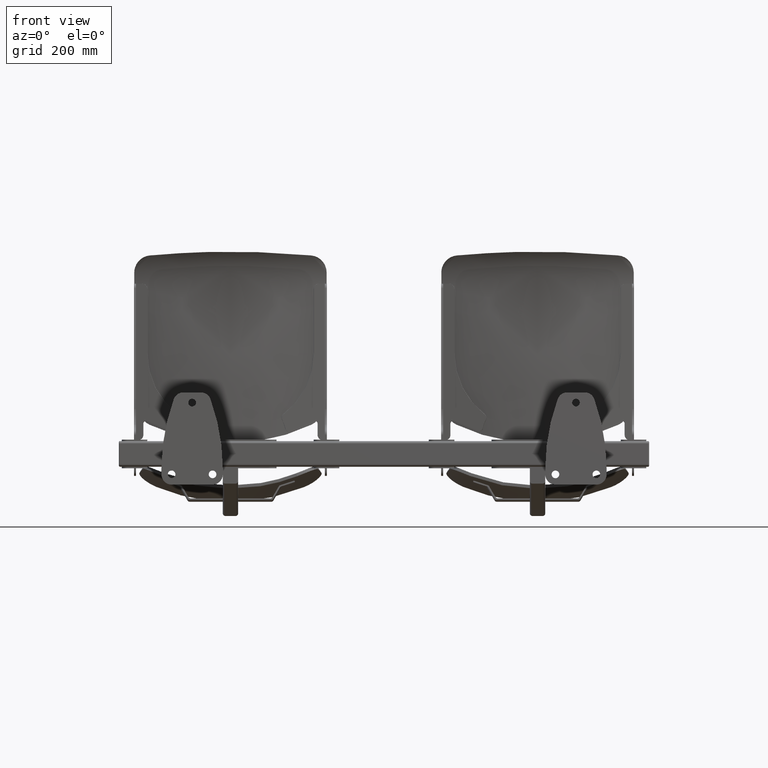
[diagram: clean part render]
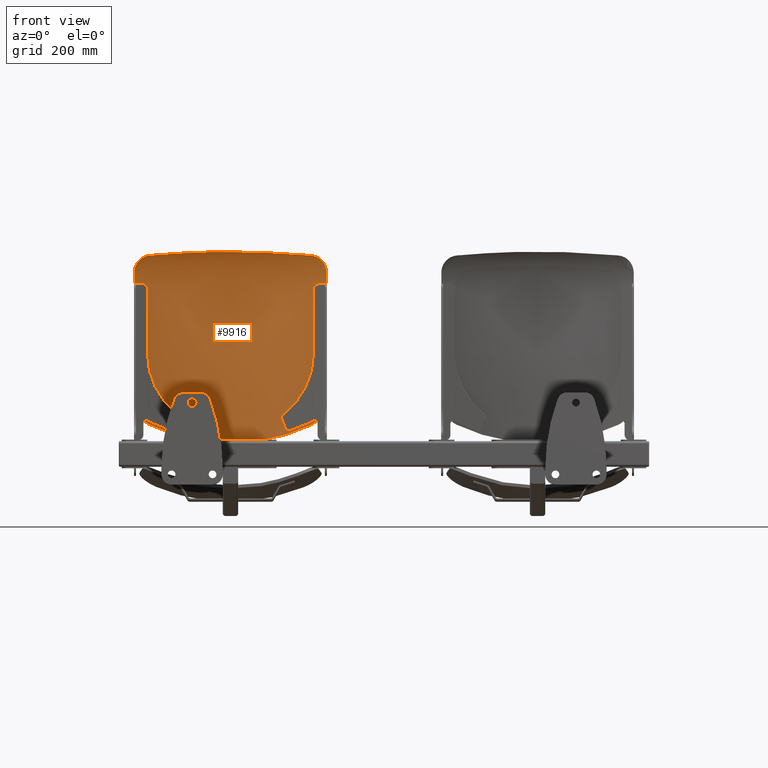
[diagram: same view with one face highlighted and labeled with its STEP entity id]
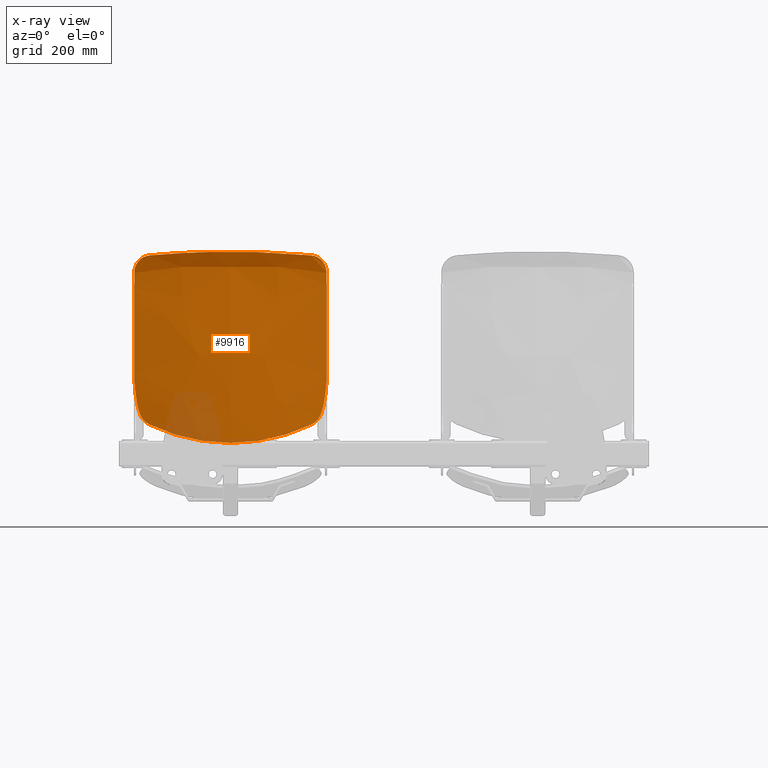
[diagram: x-ray of the same camera — body ghosted, the highlighted face saturated]
A machine part, front view. The second image highlights one B-rep face of the part: STEP entity #9916.
The next image is the same camera in x-ray: the body ghosted, the highlighted face saturated — about 6% of this face is hidden behind the body in this view.
In plain terms, the highlighted face is a freeform B-spline surface patch.
Its self-contained STEP definition (entity closure, byte-faithful):
#3674 = FACE_OUTER_BOUND ( 'NONE', #10343, .T. ) ;
#3993 = B_SPLINE_SURFACE_WITH_KNOTS ( 'NONE', 3, 3, ( 
 ( #11741, #11749, #11750, #11751, #11752, #11753, #11754, #11755, #11756, #11757, #11758, #11759, #11760 ),
 ( #11761, #11762, #11763, #11764, #11765, #11766, #11767, #11768, #11769, #11770, #12310, #12311, #12312 ),
 ( #12313, #12314, #12315, #12316, #12317, #12318, #12319, #12320, #12321, #12322, #12323, #12324, #12325 ),
 ( #12326, #12327, #12328, #12329, #12330, #12331, #12332, #12333, #12334, #12335, #12336, #12337, #12338 ),
 ( #12339, #12340, #12341, #12342, #12343, #12344, #12345, #12346, #12347, #12348, #12349, #12350, #12351 ),
 ( #12352, #12353, #12354, #12355, #12356, #12357, #12358, #12359, #12360, #12361, #12362, #12363, #12364 ),
 ( #12365, #12366, #12367, #12368, #12369, #12370, #12371, #12372, #12373, #12374, #12375, #12376, #12377 ),
 ( #12378, #12379, #12380, #12381, #12382, #12383, #12384, #12385, #12386, #12387, #12388, #12389, #12390 ),
 ( #12391, #12392, #12393, #12394, #12395, #12396, #12397, #12398, #12399, #12400, #12401, #12402, #12403 ),
 ( #12404, #12405, #12406, #12407, #12408, #12409, #12410, #12411, #12412, #12413, #12414, #12415, #12416 ),
 ( #12417, #12418, #12419, #12420, #12421, #12422, #12423, #12424, #12425, #12426, #12427, #12428, #12430 ),
 ( #12432, #12434, #12436, #12438, #12440, #12441, #12443, #12445, #12447, #12449, #12451, #12453, #12454 ),
 ( #12456, #12458, #12460, #12462, #12464, #12466, #12467, #12469, #12471, #12473, #12475, #12477, #12479 ),
 ( #12480, #12482, #12484, #12486, #12488, #12490, #12492, #12493, #12495, #12497, #12499, #12501, #12503 ),
 ( #12505, #12506, #12508, #12510, #12512, #12514, #12516, #12518, #12519, #12521, #12523, #12525, #12527 ) ),
 .UNSPECIFIED., .F., .F., .F.,
 ( 4, 3, 1, 1, 1, 2, 1, 1, 1, 4 ),
 ( 4, 1, 1, 1, 1, 1, 1, 1, 1, 1, 4 ),
 ( -0.01000000000000000000, 0.0000000000000000000, 0.1250000000000000300, 0.2500000000000000600, 0.3750000000000001100, 0.5000000000000001100, 0.6250000000000001100, 0.7500000000000000000, 0.8750000000000000000, 1.000000000000000000 ),
 ( 0.0000000000000000000, 0.1147218755964356400, 0.1948007983974813000, 0.2606139848572682200, 0.3264298036242167000, 0.4581111813546794300, 0.5901538615926241700, 0.7220127297153236000, 0.8538715978388121700, 0.9065204622699966100, 1.000000000000000000 ),
 .UNSPECIFIED. ) ;
#4051 = CARTESIAN_POINT ( 'NONE',  ( 188.0000055521278200, -6.042561717656269600E-005, 149.9928624707748400 ) ) ;
#4065 = CARTESIAN_POINT ( 'NONE',  ( 157.5625035321474500, -18.72199756527037800, 7.457756213525179600 ) ) ;
#4066 = CARTESIAN_POINT ( 'NONE',  ( -182.0059755496061800, -0.0001199722734490649100, 299.9718825208767600 ) ) ;
#4067 = CARTESIAN_POINT ( 'NONE',  ( -187.8563218026025400, -0.0002953768529767586400, 249.8295049315200900 ) ) ;
#4087 = CARTESIAN_POINT ( 'NONE',  ( -177.8472204401221300, 0.0001370729933447556400, 315.1059132242442000 ) ) ;
#4106 = CARTESIAN_POINT ( 'NONE',  ( 158.6470069993034100, -3.560112624779288000, 338.2107555783607000 ) ) ;
#4107 = CARTESIAN_POINT ( 'NONE',  ( -188.0012035646785200, -1.083772762154600100, 41.68685205327143700 ) ) ;
#4108 = CARTESIAN_POINT ( 'NONE',  ( -188.0000111042558600, -6.752819425859257800E-005, 149.9928625333074600 ) ) ;
#4117 = CARTESIAN_POINT ( 'NONE',  ( 188.0001262323119100, 2.540896976155337900E-005, 199.9999623146957800 ) ) ;
#4119 = CARTESIAN_POINT ( 'NONE',  ( -186.0003693703180800, 4.691400545819846000E-006, 275.0000391429377900 ) ) ;
#4120 = CARTESIAN_POINT ( 'NONE',  ( 186.0148617918830200, 0.0001889755161799122600, 274.8693296845450500 ) ) ;
#4121 = CARTESIAN_POINT ( 'NONE',  ( 186.0003693703418400, 4.691400379286392300E-006, 275.0000391426920600 ) ) ;
#4122 = CARTESIAN_POINT ( 'NONE',  ( 177.8472204401215000, 0.0001370729931782221900, 315.1059132242447700 ) ) ;
#4126 = CARTESIAN_POINT ( 'NONE',  ( 187.8563218329318300, -0.0002953781442216474300, 249.8295040933976200 ) ) ;
#4127 = CARTESIAN_POINT ( 'NONE',  ( 187.9999993862941800, 0.0001307344554835054900, 99.99602941533413500 ) ) ;
#4128 = CARTESIAN_POINT ( 'NONE',  ( -188.0000000000001100, -0.03623408467451350000, 240.5739880507190100 ) ) ;
#4138 = CARTESIAN_POINT ( 'NONE',  ( 188.0000000000000000, -0.03623408467468003400, 240.5739880507190700 ) ) ;
#4139 = CARTESIAN_POINT ( 'NONE',  ( 182.0028732582690100, -6.420261122741521800E-005, 299.9859136392646500 ) ) ;
#4140 = CARTESIAN_POINT ( 'NONE',  ( 188.0002311657102600, -1.073385786359459800, 41.69001669799604300 ) ) ;
#6190 = CARTESIAN_POINT ( 'NONE',  ( -157.5625035321429300, -18.72199756527098600, 7.457756213524735500 ) ) ;
#6400 = ORIENTED_EDGE ( 'NONE', *, *, #8900, .T. ) ;
#6401 = ORIENTED_EDGE ( 'NONE', *, *, #8901, .T. ) ;
#6402 = ORIENTED_EDGE ( 'NONE', *, *, #17349, .T. ) ;
#6403 = ORIENTED_EDGE ( 'NONE', *, *, #8902, .T. ) ;
#6404 = ORIENTED_EDGE ( 'NONE', *, *, #8898, .T. ) ;
#6405 = ORIENTED_EDGE ( 'NONE', *, *, #8903, .T. ) ;
#6406 = ORIENTED_EDGE ( 'NONE', *, *, #8904, .T. ) ;
#6407 = ORIENTED_EDGE ( 'NONE', *, *, #8895, .T. ) ;
#6408 = ORIENTED_EDGE ( 'NONE', *, *, #8905, .T. ) ;
#6409 = ORIENTED_EDGE ( 'NONE', *, *, #8906, .T. ) ;
#6410 = ORIENTED_EDGE ( 'NONE', *, *, #17353, .T. ) ;
#7212 = ORIENTED_EDGE ( 'NONE', *, *, #17345, .T. ) ;
#7218 = ORIENTED_EDGE ( 'NONE', *, *, #17342, .T. ) ;
#7220 = ORIENTED_EDGE ( 'NONE', *, *, #8913, .T. ) ;
#7221 = ORIENTED_EDGE ( 'NONE', *, *, #17341, .F. ) ;
#7223 = ORIENTED_EDGE ( 'NONE', *, *, #8914, .T. ) ;
#7225 = ORIENTED_EDGE ( 'NONE', *, *, #8912, .T. ) ;
#7383 = VERTEX_POINT ( 'NONE', #6190 ) ;
#8048 = CARTESIAN_POINT ( 'NONE',  ( -13.70315709112116000, -21.99999999999947800, 373.9999999999990900 ) ) ;
#8063 = CARTESIAN_POINT ( 'NONE',  ( -2.238493258309652400E-011, -21.99999999999996400, 374.0000000000000000 ) ) ;
#8067 = CARTESIAN_POINT ( 'NONE',  ( -27.40251786177563500, -21.59829927750126900, 373.2401518862341700 ) ) ;
#8068 = CARTESIAN_POINT ( 'NONE',  ( -44.52189235745715500, -20.58556990604177600, 371.3242526558227000 ) ) ;
#8069 = CARTESIAN_POINT ( 'NONE',  ( -47.94552520622358600, -20.35741036279572600, 370.8926263182627300 ) ) ;
#8070 = CARTESIAN_POINT ( 'NONE',  ( -54.79230194186704500, -19.84938349205829800, 369.9314897528165000 ) ) ;
#8071 = CARTESIAN_POINT ( 'NONE',  ( -58.21688396923641300, -19.56938746362637700, 369.4017358264018200 ) ) ;
#8072 = CARTESIAN_POINT ( 'NONE',  ( -68.48099206416172500, -18.65178511681361700, 367.6652941120046300 ) ) ;
#8073 = CARTESIAN_POINT ( 'NONE',  ( -75.24413141047331500, -17.94262275974103500, 366.3230389061860100 ) ) ;
#8074 = CARTESIAN_POINT ( 'NONE',  ( -88.61714266932014500, -16.33821413107511600, 363.2822731389094300 ) ) ;
#8075 = CARTESIAN_POINT ( 'NONE',  ( -95.22698482958828900, -15.44280821913940100, 361.5837553788703600 ) ) ;
#8076 = CARTESIAN_POINT ( 'NONE',  ( -108.2982282558019700, -13.47659193804441100, 357.8392658228970600 ) ) ;
#8077 = CARTESIAN_POINT ( 'NONE',  ( -114.7595952493986900, -12.40555965448884900, 355.7933048063777100 ) ) ;
#8078 = CARTESIAN_POINT ( 'NONE',  ( -127.5385371953039700, -10.10605476084551700, 351.3585547668187100 ) ) ;
#8079 = CARTESIAN_POINT ( 'NONE',  ( -133.8560606569987800, -8.877202496892922000, 348.9698051385338400 ) ) ;
#8080 = CARTESIAN_POINT ( 'NONE',  ( -146.3530371576182700, -6.296030642478657800, 343.8492205666911400 ) ) ;
#8081 = CARTESIAN_POINT ( 'NONE',  ( -152.5324352537480500, -4.943244926504332800, 341.1174582662251900 ) ) ;
#8082 = CARTESIAN_POINT ( 'NONE',  ( -158.6470069993035600, -3.560112624779343500, 338.2107555783608200 ) ) ;
#8150 = CARTESIAN_POINT ( 'NONE',  ( -188.0012035646785200, -1.083772762154600100, 41.68685205327143700 ) ) ;
#8151 = CARTESIAN_POINT ( 'NONE',  ( -188.0022870628924400, -0.6496528624197972500, 44.33293525947968300 ) ) ;
#8163 = CARTESIAN_POINT ( 'NONE',  ( -188.0001262463934200, 2.541450083715091100E-005, 199.9999624081456500 ) ) ;
#8164 = CARTESIAN_POINT ( 'NONE',  ( -187.8525334123356700, 0.03086408126688504000, 183.3205721773864500 ) ) ;
#8165 = CARTESIAN_POINT ( 'NONE',  ( -188.0024722731949700, -0.2939506153448788700, 47.15831624106067500 ) ) ;
#8166 = CARTESIAN_POINT ( 'NONE',  ( -188.0024225126178400, 0.2710497398211843500, 53.07993217866838600 ) ) ;
#8167 = CARTESIAN_POINT ( 'NONE',  ( -188.0021820371105700, 0.4805861891277090600, 56.17533090148489100 ) ) ;
#8168 = CARTESIAN_POINT ( 'NONE',  ( -188.0014612997416100, 0.7510332483497368400, 62.63056684434935300 ) ) ;
#8169 = CARTESIAN_POINT ( 'NONE',  ( -188.0009825776940900, 0.8112463409078190000, 65.99114990217168500 ) ) ;
#8170 = CARTESIAN_POINT ( 'NONE',  ( -188.0003986706768200, 0.8035839978773633400, 71.23478564972890600 ) ) ;
#8171 = CARTESIAN_POINT ( 'NONE',  ( -188.0002281826668600, 0.7849107386902696200, 73.01650368887986500 ) ) ;
#8172 = CARTESIAN_POINT ( 'NONE',  ( -188.0000656917603400, 0.7366653401512217600, 75.74071747489553300 ) ) ;
#8173 = CARTESIAN_POINT ( 'NONE',  ( -188.0000272054002700, 0.7172269422442635300, 76.65739834832341200 ) ) ;
#8174 = CARTESIAN_POINT ( 'NONE',  ( -188.0000057204465800, 0.6892700364292350100, 77.81413039222712800 ) ) ;
#8175 = CARTESIAN_POINT ( 'NONE',  ( -188.0000012761541100, 0.6806090625133931500, 78.16196618944746900 ) ) ;
#8176 = CARTESIAN_POINT ( 'NONE',  ( -188.0000000448796100, 0.6715539034215430900, 78.51102995050041500 ) ) ;
#8177 = CARTESIAN_POINT ( 'NONE',  ( -187.9999999931317500, 0.6677273716808992400, 78.65664399999170100 ) ) ;
#8178 = CARTESIAN_POINT ( 'NONE',  ( -187.9999999984772800, 0.6675670310197653300, 78.66270594968855800 ) ) ;
#8179 = CARTESIAN_POINT ( 'NONE',  ( -187.9999999799213700, 0.6669472572300098000, 78.68621841428735300 ) ) ;
#8180 = CARTESIAN_POINT ( 'NONE',  ( -187.9999999341683600, 0.6660162665478165400, 78.72150048459320700 ) ) ;
#8181 = CARTESIAN_POINT ( 'NONE',  ( -187.9999993048912500, 0.6600947469895645000, 78.94520769805139100 ) ) ;
#8182 = CARTESIAN_POINT ( 'NONE',  ( -187.9999967887188700, 0.6543415771615658200, 79.15858527255716100 ) ) ;
#8183 = CARTESIAN_POINT ( 'NONE',  ( -187.9999341437996300, 0.5655096646646501400, 82.40236736897972500 ) ) ;
#8184 = CARTESIAN_POINT ( 'NONE',  ( -187.9994800347203100, 0.4509624061082400100, 85.74714622946842700 ) ) ;
#8185 = CARTESIAN_POINT ( 'NONE',  ( -187.9986517321493400, 0.2033617786277308000, 93.03012430046699400 ) ) ;
#8186 = CARTESIAN_POINT ( 'NONE',  ( -187.9982983954859000, 0.06993764059986651300, 96.96826173512265300 ) ) ;
#8187 = CARTESIAN_POINT ( 'NONE',  ( -187.9988404034300500, -0.05842154600938829400, 103.3383474381390400 ) ) ;
#8188 = CARTESIAN_POINT ( 'NONE',  ( -187.9991746908249300, -0.08968672453618137300, 105.5387575123954300 ) ) ;
#8189 = CARTESIAN_POINT ( 'NONE',  ( -187.9996250835142200, -0.1191079303154778100, 108.9548556455506800 ) ) ;
#8190 = CARTESIAN_POINT ( 'NONE',  ( -187.9997653972411300, -0.1260118634006741300, 110.1127998685110900 ) ) ;
#8191 = CARTESIAN_POINT ( 'NONE',  ( -187.9999129367367300, -0.1320979699822306100, 111.8785464623068200 ) ) ;
#8192 = CARTESIAN_POINT ( 'NONE',  ( -187.9999708295861200, -0.1340748382611373400, 112.7686270274416000 ) ) ;
#8193 = CARTESIAN_POINT ( 'NONE',  ( -187.9999945213205300, -0.1344802531487213100, 113.6695087631855800 ) ) ;
#8194 = CARTESIAN_POINT ( 'NONE',  ( -187.9999997288817900, -0.1344240143814994500, 114.1217488621962600 ) ) ;
#8195 = CARTESIAN_POINT ( 'NONE',  ( -187.9999997920048700, -0.1343568200075382400, 114.2741671134828500 ) ) ;
#8196 = CARTESIAN_POINT ( 'NONE',  ( -188.0000004369440500, -0.1341660641364307800, 114.5680945865391900 ) ) ;
#8197 = CARTESIAN_POINT ( 'NONE',  ( -188.0000014366885600, -0.1340429855617277500, 114.7148085604897700 ) ) ;
#8198 = CARTESIAN_POINT ( 'NONE',  ( -188.0000551760299700, -0.1291019510137920400, 119.5481202832335200 ) ) ;
#8199 = CARTESIAN_POINT ( 'NONE',  ( -188.0006425985038700, -0.09822056830072212200, 123.9787516329436300 ) ) ;
#8200 = CARTESIAN_POINT ( 'NONE',  ( -188.0011152717920600, -0.03784077606390218200, 132.3161530824618800 ) ) ;
#8201 = CARTESIAN_POINT ( 'NONE',  ( -188.0010323784683000, -0.008097778000101769200, 136.2229627741409100 ) ) ;
#8202 = CARTESIAN_POINT ( 'NONE',  ( -188.0004512504168600, 0.02121331922923314400, 143.5062798044310500 ) ) ;
#8203 = CARTESIAN_POINT ( 'NONE',  ( -188.0000000000003400, 0.02106111504201280100, 146.8828438574750800 ) ) ;
#8204 = CARTESIAN_POINT ( 'NONE',  ( -188.0000111042558600, -6.752819425859257800E-005, 149.9928625333074600 ) ) ;
#8207 = CARTESIAN_POINT ( 'NONE',  ( -187.9606046966045200, 0.1179701345372243100, 166.6950656131827200 ) ) ;
#8208 = CARTESIAN_POINT ( 'NONE',  ( -188.0000112297363200, -3.361936269377982600E-005, 149.9952416192824100 ) ) ;
#8209 = CARTESIAN_POINT ( 'NONE',  ( -188.0000111042558600, -6.752819425859257800E-005, 149.9928625333074600 ) ) ;
#8220 = CARTESIAN_POINT ( 'NONE',  ( -186.8850598177102700, 0.0007819467229067347400, 266.5798535911614000 ) ) ;
#8221 = CARTESIAN_POINT ( 'NONE',  ( -186.0148617918873400, 0.0001889755166240014700, 274.8693296845094100 ) ) ;
#8226 = CARTESIAN_POINT ( 'NONE',  ( -187.5078606923417800, 0.002815993890954993500, 258.2347500899748500 ) ) ;
#8227 = CARTESIAN_POINT ( 'NONE',  ( -187.8552697417543700, -3.862708874656080800E-005, 249.8863725735428700 ) ) ;
#8228 = CARTESIAN_POINT ( 'NONE',  ( -187.8563218026025400, -0.0002953768529767586400, 249.8295049315200900 ) ) ;
#8229 = CARTESIAN_POINT ( 'NONE',  ( -179.2862481404860900, 0.0001593253500829429000, 310.0706236428878200 ) ) ;
#8230 = CARTESIAN_POINT ( 'NONE',  ( -177.8472204401221300, 0.0001370729933447556400, 315.1059132242442000 ) ) ;
#8245 = CARTESIAN_POINT ( 'NONE',  ( -180.8017965757545700, 0.0001361541688311757500, 305.0260064022712600 ) ) ;
#8246 = CARTESIAN_POINT ( 'NONE',  ( -182.0044438124057300, -5.044485602120664100E-007, 299.9813643962091300 ) ) ;
#8247 = CARTESIAN_POINT ( 'NONE',  ( -182.0059755496061800, -0.0001199722734490649100, 299.9718825208767600 ) ) ;
#8248 = CARTESIAN_POINT ( 'NONE',  ( 188.0001569802912500, -0.6434040897014496900, 44.24673741514320100 ) ) ;
#8249 = CARTESIAN_POINT ( 'NONE',  ( 188.0002311657102600, -1.073385786359459800, 41.69001669799604300 ) ) ;
#8263 = CARTESIAN_POINT ( 'NONE',  ( 188.0002004513779400, -0.3280206429165321000, 46.75883080214410400 ) ) ;
#8264 = CARTESIAN_POINT ( 'NONE',  ( 188.0001794455299900, 0.1676882322751472900, 51.62424390945917500 ) ) ;
#8265 = CARTESIAN_POINT ( 'NONE',  ( 188.0001069686970300, 0.3491469932175869700, 53.97564642126899100 ) ) ;
#8266 = CARTESIAN_POINT ( 'NONE',  ( 188.0000296338548100, 0.5507351761103163000, 57.38511377482667800 ) ) ;
#8267 = CARTESIAN_POINT ( 'NONE',  ( 188.0000090525487600, 0.6060471712628735500, 58.50207381544452500 ) ) ;
#8268 = CARTESIAN_POINT ( 'NONE',  ( 188.0000015089922800, 0.6571284715180029100, 59.73716200832398500 ) ) ;
#8269 = CARTESIAN_POINT ( 'NONE',  ( 188.0000005742409100, 0.6654094151712614000, 59.94256220174614200 ) ) ;
#8270 = CARTESIAN_POINT ( 'NONE',  ( 188.0000000885563900, 0.6746729614214911400, 60.18141408637959700 ) ) ;
#8271 = CARTESIAN_POINT ( 'NONE',  ( 188.0000000080798900, 0.6788826932575858800, 60.29212837821918900 ) ) ;
#8272 = CARTESIAN_POINT ( 'NONE',  ( 188.0000000007353800, 0.6804872924560597700, 60.33468177422665200 ) ) ;
#8273 = CARTESIAN_POINT ( 'NONE',  ( 187.9999999996935600, 0.6811279715966357400, 60.35170081108820700 ) ) ;
#8274 = CARTESIAN_POINT ( 'NONE',  ( 187.9999999997660300, 0.6817099514476302500, 60.36718467386476300 ) ) ;
#8275 = CARTESIAN_POINT ( 'NONE',  ( 187.9999999919316700, 0.6833313594838074100, 60.41047405453484500 ) ) ;
#8276 = CARTESIAN_POINT ( 'NONE',  ( 187.9999997807185800, 0.7015839003482056100, 60.90059325913539800 ) ) ;
#8277 = CARTESIAN_POINT ( 'NONE',  ( 187.9999975519342000, 0.7177571877407532600, 61.38232230753848700 ) ) ;
#8278 = CARTESIAN_POINT ( 'NONE',  ( 187.9999876806417700, 0.7585319672900071600, 62.72033810499478800 ) ) ;
#8279 = CARTESIAN_POINT ( 'NONE',  ( 187.9999764144863500, 0.7792098510294579400, 63.58280496427141800 ) ) ;
#8280 = CARTESIAN_POINT ( 'NONE',  ( 187.9999148978574500, 0.8575182649925701100, 67.74901543537347900 ) ) ;
#8281 = CARTESIAN_POINT ( 'NONE',  ( 187.9998676185231000, 0.8437818613488317100, 70.61522174094358200 ) ) ;
#8282 = CARTESIAN_POINT ( 'NONE',  ( 187.9998926704428200, 0.7844858118717189500, 75.43992987978491300 ) ) ;
#8283 = CARTESIAN_POINT ( 'NONE',  ( 187.9999540579027800, 0.7373962301631266100, 77.39810080762930500 ) ) ;
#8284 = CARTESIAN_POINT ( 'NONE',  ( 187.9999921826620600, 0.6876947098130976600, 79.28463757449631500 ) ) ;
#8285 = CARTESIAN_POINT ( 'NONE',  ( 187.9999976275358600, 0.6780971696863308300, 79.63386141535905000 ) ) ;
#8286 = CARTESIAN_POINT ( 'NONE',  ( 187.9999996074850200, 0.6678994785983694000, 79.99518910659011800 ) ) ;
#8287 = CARTESIAN_POINT ( 'NONE',  ( 187.9999998512198000, 0.6662122455319863200, 80.05475309189367300 ) ) ;
#8288 = CARTESIAN_POINT ( 'NONE',  ( 187.9999999771140200, 0.6642662930659588600, 80.12309430987922100 ) ) ;
#8289 = CARTESIAN_POINT ( 'NONE',  ( 187.9999999979132500, 0.6633681266496569400, 80.15455719311653100 ) ) ;
#8290 = CARTESIAN_POINT ( 'NONE',  ( 187.9999999998099400, 0.6630235365073119400, 80.16661552024457600 ) ) ;
#8291 = CARTESIAN_POINT ( 'NONE',  ( 188.0000000000789300, 0.6628857692731705600, 80.17143542858116200 ) ) ;
#8292 = CARTESIAN_POINT ( 'NONE',  ( 187.9999999999875800, 0.6627163998067547900, 80.17735979494133900 ) ) ;
#8293 = CARTESIAN_POINT ( 'NONE',  ( 187.9999999995669400, 0.6622531807149941700, 80.19355300695394800 ) ) ;
#8294 = CARTESIAN_POINT ( 'NONE',  ( 187.9999999882371400, 0.6569993115035345200, 80.37704541772588100 ) ) ;
#8295 = CARTESIAN_POINT ( 'NONE',  ( 187.9999996369981000, 0.6416582846296538000, 80.90443325985909000 ) ) ;
#8296 = CARTESIAN_POINT ( 'NONE',  ( 187.9999985434773700, 0.6261308613980305400, 81.41691360099844100 ) ) ;
#8297 = CARTESIAN_POINT ( 'NONE',  ( 187.9999937577279100, 0.5734613536083237300, 83.11601396944946900 ) ) ;
#8298 = CARTESIAN_POINT ( 'NONE',  ( 187.9999865211890400, 0.5284482738581493000, 84.44596691098368500 ) ) ;
#8299 = CARTESIAN_POINT ( 'NONE',  ( 187.9999687590374200, 0.3914381243311837500, 88.34926918403851900 ) ) ;
#8300 = CARTESIAN_POINT ( 'NONE',  ( 187.9999646408649600, 0.2978820984814130000, 90.83615080980149500 ) ) ;
#8301 = CARTESIAN_POINT ( 'NONE',  ( 187.9999806147882000, 0.1309034290046678900, 95.58451167021895900 ) ) ;
#8302 = CARTESIAN_POINT ( 'NONE',  ( 187.9999999999999100, 0.05738231381101558500, 97.84596959755845100 ) ) ;
#8303 = CARTESIAN_POINT ( 'NONE',  ( 187.9999993862941800, 0.0001307344554835054900, 99.99602941533413500 ) ) ;
#8359 = CARTESIAN_POINT ( 'NONE',  ( 180.7989972531995900, 0.0001361969673033963100, 305.0353241584657000 ) ) ;
#8360 = CARTESIAN_POINT ( 'NONE',  ( 182.0028732582690100, -6.420261122741521800E-005, 299.9859136392646500 ) ) ;
#8374 = CARTESIAN_POINT ( 'NONE',  ( 179.2862481404855000, 0.0001593253498066168400, 310.0706236428882800 ) ) ;
#8375 = CARTESIAN_POINT ( 'NONE',  ( 177.8472204401215000, 0.0001370729931782221900, 315.1059132242447700 ) ) ;
#8837 = B_SPLINE_CURVE_WITH_KNOTS ( 'NONE', 3,
 ( #8230, #8229, #8245, #8246, #8247 ),
 .UNSPECIFIED., .F., .F.,
 ( 4, 1, 4 ),
 ( 0.1550354182667220100, 0.1948007983974826000, 0.1948743837161259500 ),
 .UNSPECIFIED. ) ;
#8843 = B_SPLINE_CURVE_WITH_KNOTS ( 'NONE', 3,
 ( #8150, #8151, #8165, #8166, #8167, #8168, #8169, #8170, #8171, #8172, #8173, #8174, #8175, #8176, #8177, #8178, #8179, #8180, #8181, #8182, #8183, #8184, #8185, #8186, #8187, #8188, #8189, #8190, #8191, #8192, #8193, #8194, #8195, #8196, #8197, #8198, #8199, #8200, #8201, #8202, #8203, #8204 ),
 .UNSPECIFIED., .F., .F.,
 ( 4, 2, 2, 2, 2, 2, 1, 2, 2, 1, 1, 2, 2, 2, 2, 2, 1, 2, 2, 2, 2, 2, 4 ),
 ( 0.3418074902021571200, 0.3829445220644970300, 0.4240815539268370000, 0.4652185857891769100, 0.4857871017203467800, 0.4960713596859318600, 0.4986424241773280700, 0.4999279564230261200, 0.5002493394844504900, 0.5005707225458749800, 0.5012134886687241700, 0.5063556176515207100, 0.5886296813762634800, 0.6709037451010060300, 0.7120407769633776400, 0.7326092928945634500, 0.7428935508601561800, 0.7480356798429526100, 0.7506067443343509300, 0.7531778088257492500, 0.8354518725504991300, 0.9177259362752496800, 1.000000000000000000 ),
 .UNSPECIFIED. ) ;
#8847 = B_SPLINE_CURVE_WITH_KNOTS ( 'NONE', 3,
 ( #8249, #8248, #8263, #8264, #8265, #8266, #8267, #8268, #8269, #8270, #8271, #8272, #8273, #8274, #8275, #8276, #8277, #8278, #8279, #8280, #8281, #8282, #8283, #8284, #8285, #8286, #8287, #8288, #8289, #8290, #8291, #8292, #8293, #8294, #8295, #8296, #8297, #8298, #8299, #8300, #8301, #8302, #8303 ),
 .UNSPECIFIED., .F., .F.,
 ( 4, 2, 2, 2, 1, 1, 1, 2, 2, 1, 2, 2, 2, 2, 2, 1, 1, 1, 2, 2, 1, 1, 2, 2, 2, 4 ),
 ( 0.3633871575399147400, 0.4429637628473998000, 0.5225403681548849200, 0.5623286708086273600, 0.5673022086403450800, 0.5697889775562039500, 0.5710323620141334300, 0.5713432081286158300, 0.5716540542430983400, 0.5722757464720633600, 0.5822228221355036900, 0.6021169734623846900, 0.6816935787699089900, 0.7612701840774331900, 0.7811643354043137400, 0.7836511043201741500, 0.7848944887781041900, 0.7855161810070693300, 0.7856716040643103600, 0.7858270271215515000, 0.7861378732360339000, 0.7911114110677544000, 0.8010584867311947300, 0.8408467893849556100, 0.9204233946924778000, 1.000000000000000000 ),
 .UNSPECIFIED. ) ;
#8852 = B_SPLINE_CURVE_WITH_KNOTS ( 'NONE', 3,
 ( #8163, #8164, #8207, #8208, #8209 ),
 .UNSPECIFIED., .F., .F.,
 ( 4, 1, 4 ),
 ( 0.4581113582125830300, 0.5901538615926242800, 0.5901726761091143900 ),
 .UNSPECIFIED. ) ;
#8864 = B_SPLINE_CURVE_WITH_KNOTS ( 'NONE', 3,
 ( #8221, #8220, #8226, #8227, #8228 ),
 .UNSPECIFIED., .F., .F.,
 ( 4, 1, 4 ),
 ( 0.2609583101506876600, 0.3264298036242168600, 0.3268784142531473400 ),
 .UNSPECIFIED. ) ;
#8865 = B_SPLINE_CURVE_WITH_KNOTS ( 'NONE', 3,
 ( #8360, #8359, #8374, #8375 ),
 .UNSPECIFIED., .F., .F.,
 ( 4, 4 ),
 ( 0.8051992016779040400, 0.8449645817332793700 ),
 .UNSPECIFIED. ) ;
#8895 = EDGE_CURVE ( 'NONE', #19391, #19385, #17896, .T. ) ;
#8898 = EDGE_CURVE ( 'NONE', #18297, #19382, #17898, .T. ) ;
#8900 = EDGE_CURVE ( 'NONE', #7383, #18313, #17961, .T. ) ;
#8901 = EDGE_CURVE ( 'NONE', #18313, #19405, #17946, .T. ) ;
#8902 = EDGE_CURVE ( 'NONE', #19392, #18297, #17906, .T. ) ;
#8903 = EDGE_CURVE ( 'NONE', #19382, #19403, #17907, .T. ) ;
#8904 = EDGE_CURVE ( 'NONE', #19403, #19391, #17922, .T. ) ;
#8905 = EDGE_CURVE ( 'NONE', #19385, #19386, #17935, .T. ) ;
#8906 = EDGE_CURVE ( 'NONE', #19386, #19404, #17945, .T. ) ;
#8907 = EDGE_CURVE ( 'NONE', #19387, #19371, #17892, .T. ) ;
#8908 = EDGE_CURVE ( 'NONE', #19371, #10267, #17910, .T. ) ;
#8909 = EDGE_CURVE ( 'NONE', #10210, #19352, #17919, .T. ) ;
#8910 = EDGE_CURVE ( 'NONE', #18314, #19384, #17901, .T. ) ;
#8911 = EDGE_CURVE ( 'NONE', #19384, #10216, #17960, .T. ) ;
#8912 = EDGE_CURVE ( 'NONE', #18315, #19393, #17939, .T. ) ;
#8913 = EDGE_CURVE ( 'NONE', #19393, #10242, #17954, .T. ) ;
#8914 = EDGE_CURVE ( 'NONE', #19372, #7383, #17918, .T. ) ;
#9320 = CARTESIAN_POINT ( 'NONE',  ( -158.6470069993035600, -3.560112624779343500, 338.2107555783608200 ) ) ;
#9324 = CARTESIAN_POINT ( 'NONE',  ( -186.0148617918873400, 0.0001889755166240014700, 274.8693296845094100 ) ) ;
#9350 = CARTESIAN_POINT ( 'NONE',  ( -188.0001262463934200, 2.541450083715091100E-005, 199.9999624081456500 ) ) ;
#9375 = CARTESIAN_POINT ( 'NONE',  ( -2.238493258309652400E-011, -21.99999999999996400, 374.0000000000000000 ) ) ;
#9916 = ADVANCED_FACE ( 'NONE', ( #3674 ), #3993, .T. ) ;
#10210 = VERTEX_POINT ( 'NONE', #9320 ) ;
#10216 = VERTEX_POINT ( 'NONE', #9324 ) ;
#10242 = VERTEX_POINT ( 'NONE', #9350 ) ;
#10267 = VERTEX_POINT ( 'NONE', #9375 ) ;
#10332 = ORIENTED_EDGE ( 'NONE', *, *, #8907, .T. ) ;
#10333 = ORIENTED_EDGE ( 'NONE', *, *, #8908, .T. ) ;
#10334 = ORIENTED_EDGE ( 'NONE', *, *, #17336, .T. ) ;
#10335 = ORIENTED_EDGE ( 'NONE', *, *, #8909, .T. ) ;
#10336 = ORIENTED_EDGE ( 'NONE', *, *, #17347, .T. ) ;
#10337 = ORIENTED_EDGE ( 'NONE', *, *, #8910, .T. ) ;
#10338 = ORIENTED_EDGE ( 'NONE', *, *, #8911, .T. ) ;
#10343 = EDGE_LOOP ( 'NONE', ( #6400, #6401, #6402, #6403, #6404, #6405, #6406, #6407, #6408, #6409, #6410, #10332, #10333, #10334, #10335, #10336, #10337, #10338, #7212, #7225, #7220, #7218, #7221, #7223 ) ) ;
#11741 = CARTESIAN_POINT ( 'NONE',  ( 177.5078859497257000, 0.8753604273275539200, 374.0000000000000000 ) ) ;
#11749 = CARTESIAN_POINT ( 'NONE',  ( 176.1929585820747100, 0.8748559993895233000, 359.4733192631505900 ) ) ;
#11750 = CARTESIAN_POINT ( 'NONE',  ( 173.9601769114352400, 0.8739994673239159800, 334.8066287048632700 ) ) ;
#11751 = CARTESIAN_POINT ( 'NONE',  ( 186.1897008547051100, 0.8786909154583355500, 301.8064929026464300 ) ) ;
#11752 = CARTESIAN_POINT ( 'NONE',  ( 189.9127170051848700, 0.8671052836385917400, 274.9985839518418500 ) ) ;
#11753 = CARTESIAN_POINT ( 'NONE',  ( 192.4592217056645300, 0.8601720507488974700, 241.6650823493228300 ) ) ;
#11754 = CARTESIAN_POINT ( 'NONE',  ( 191.4397810946272800, 0.7668710282593416100, 199.8982916209794800 ) ) ;
#11755 = CARTESIAN_POINT ( 'NONE',  ( 191.7960598742047600, 0.8355391045989368800, 150.0974369892213900 ) ) ;
#11756 = CARTESIAN_POINT ( 'NONE',  ( 191.7186074622943300, -0.2764991999812949100, 99.82918264297163100 ) ) ;
#11757 = CARTESIAN_POINT ( 'NONE',  ( 191.7405075052197400, 2.652635974002559600, 60.46496127421713100 ) ) ;
#11758 = CARTESIAN_POINT ( 'NONE',  ( 191.7592815000313600, -3.583402664253942900, 24.07905034312246400 ) ) ;
#11759 = CARTESIAN_POINT ( 'NONE',  ( 191.7566067534346200, -15.27858033161749800, 9.394089762111978100 ) ) ;
#11760 = CARTESIAN_POINT ( 'NONE',  ( 191.7548956960925800, -22.76008143507479500, 0.0000000000000000000 ) ) ;
#11761 = CARTESIAN_POINT ( 'NONE',  ( 176.3717772607786600, 0.5835736182184803100, 374.0000000000000000 ) ) ;
#11762 = CARTESIAN_POINT ( 'NONE',  ( 175.0655948374305200, 0.5832158408119458800, 359.4733192631504200 ) ) ;
#11763 = CARTESIAN_POINT ( 'NONE',  ( 172.8476623149878200, 0.5826083252526981200, 334.8066287048631000 ) ) ;
#11764 = CARTESIAN_POINT ( 'NONE',  ( 184.9958536247104600, 0.5859358454375351900, 301.8064929026464300 ) ) ;
#11765 = CARTESIAN_POINT ( 'NONE',  ( 188.6935843980153000, 0.5776382964780557600, 274.9985839518418500 ) ) ;
#11766 = CARTESIAN_POINT ( 'NONE',  ( 191.2224053028615700, 0.5757583974971836000, 241.6650823493228300 ) ) ;
#11767 = CARTESIAN_POINT ( 'NONE',  ( 190.2081116190173600, 0.4925833937554080500, 199.8982916209794800 ) ) ;
#11768 = CARTESIAN_POINT ( 'NONE',  ( 190.5535382328384600, 0.6253362953344554500, 150.0974369892213100 ) ) ;
#11769 = CARTESIAN_POINT ( 'NONE',  ( 190.4727912743063600, -0.4384474263613436000, 99.82918264297163100 ) ) ;
#11770 = CARTESIAN_POINT ( 'NONE',  ( 190.4942562141736500, 2.475951680061150300, 60.46496127421702500 ) ) ;
#12310 = CARTESIAN_POINT ( 'NONE',  ( 190.5060094861552500, -3.633895967981415300, 24.07905034312263100 ) ) ;
#12311 = CARTESIAN_POINT ( 'NONE',  ( 190.5043349877578600, -15.34705217028908900, 9.394089762112090000 ) ) ;
#12312 = CARTESIAN_POINT ( 'NONE',  ( 190.5032637973951600, -22.84005429004987100, -1.665334536937734800E-013 ) ) ;
#12313 = CARTESIAN_POINT ( 'NONE',  ( 175.2356685718316100, 0.2917868091092956600, 374.0000000000001700 ) ) ;
#12314 = CARTESIAN_POINT ( 'NONE',  ( 173.9382310927863700, 0.2915756822343684700, 359.4733192631505900 ) ) ;
#12315 = CARTESIAN_POINT ( 'NONE',  ( 171.7351477185403900, 0.2912171831813137300, 334.8066287048632700 ) ) ;
#12316 = CARTESIAN_POINT ( 'NONE',  ( 183.8020063947158500, 0.2931807754169568600, 301.8064929026464800 ) ) ;
#12317 = CARTESIAN_POINT ( 'NONE',  ( 187.4744517908457600, 0.2881713093173532400, 274.9985839518420200 ) ) ;
#12318 = CARTESIAN_POINT ( 'NONE',  ( 189.9855889000586200, 0.2913447442456362800, 241.6650823493228300 ) ) ;
#12319 = CARTESIAN_POINT ( 'NONE',  ( 188.9764421434074100, 0.2182957592514189700, 199.8982916209794500 ) ) ;
#12320 = CARTESIAN_POINT ( 'NONE',  ( 189.3110165914721700, 0.4151334860700850400, 150.0974369892213100 ) ) ;
#12321 = CARTESIAN_POINT ( 'NONE',  ( 189.2269750863183900, -0.6003956527416698400, 99.82918264297163100 ) ) ;
#12322 = CARTESIAN_POINT ( 'NONE',  ( 189.2480049231275800, 2.299267386119796500, 60.46496127421707500 ) ) ;
#12323 = CARTESIAN_POINT ( 'NONE',  ( 189.2527374722791600, -3.684389271708943300, 24.07905034312257800 ) ) ;
#12324 = CARTESIAN_POINT ( 'NONE',  ( 189.2520632220810600, -15.41552400896090100, 9.394089762111923000 ) ) ;
#12325 = CARTESIAN_POINT ( 'NONE',  ( 189.2516318986977200, -22.92002714502522300, 0.0000000000000000000 ) ) ;
#12326 = CARTESIAN_POINT ( 'NONE',  ( 174.0995598828845900, -1.110223024625156500E-013, 374.0000000000000000 ) ) ;
#12327 = CARTESIAN_POINT ( 'NONE',  ( 172.8108673481421800, -6.447634320894124500E-005, 359.4733192631504200 ) ) ;
#12328 = CARTESIAN_POINT ( 'NONE',  ( 170.6226331220929600, -0.0001739588899596356000, 334.8066287048631000 ) ) ;
#12329 = CARTESIAN_POINT ( 'NONE',  ( 182.6081591647212000, 0.0004257053963230284000, 301.8064929026464300 ) ) ;
#12330 = CARTESIAN_POINT ( 'NONE',  ( 186.2553191836762200, -0.001295677843460296700, 274.9985839518418500 ) ) ;
#12331 = CARTESIAN_POINT ( 'NONE',  ( 188.7487724972556600, 0.006931090994088950900, 241.6650823493228600 ) ) ;
#12332 = CARTESIAN_POINT ( 'NONE',  ( 187.7447726677974900, -0.05599187525240356700, 199.8982916209794800 ) ) ;
#12333 = CARTESIAN_POINT ( 'NONE',  ( 188.0684949501058700, 0.2049306768057146400, 150.0974369892213100 ) ) ;
#12334 = CARTESIAN_POINT ( 'NONE',  ( 187.9811588983304200, -0.7623438791217185300, 99.82918264297180100 ) ) ;
#12335 = CARTESIAN_POINT ( 'NONE',  ( 188.0017536320814900, 2.122583092178553800, 60.46496127421702500 ) ) ;
#12336 = CARTESIAN_POINT ( 'NONE',  ( 187.9994654584030800, -3.734882575436415700, 24.07905034312241100 ) ) ;
#12337 = CARTESIAN_POINT ( 'NONE',  ( 187.9997914564043000, -15.48399584763260300, 9.394089762111923000 ) ) ;
#12338 = CARTESIAN_POINT ( 'NONE',  ( 188.0000000000003100, -23.00000000000029800, 5.551115123125782700E-014 ) ) ;
#12339 = CARTESIAN_POINT ( 'NONE',  ( 159.8982012710468200, -3.647335113865501900, 374.0000000000001700 ) ) ;
#12340 = CARTESIAN_POINT ( 'NONE',  ( 158.7188205400901500, -3.645566458562898800, 359.4733192631505900 ) ) ;
#12341 = CARTESIAN_POINT ( 'NONE',  ( 156.7162006664999900, -3.642563234781626100, 334.8066287048631000 ) ) ;
#12342 = CARTESIAN_POINT ( 'NONE',  ( 167.6850687897882600, -3.659012669861405600, 301.8064929026464800 ) ) ;
#12343 = CARTESIAN_POINT ( 'NONE',  ( 171.0161615940569400, -3.619633017351686600, 274.9985839518418500 ) ) ;
#12344 = CARTESIAN_POINT ( 'NONE',  ( 173.2885674622186200, -3.548239574649836300, 241.6650823493228300 ) ) ;
#12345 = CARTESIAN_POINT ( 'NONE',  ( 172.3489042226734400, -3.484587306552045000, 199.8982916209795600 ) ) ;
#12346 = CARTESIAN_POINT ( 'NONE',  ( 172.5369744330273000, -2.422604438998610100, 150.0974369892213100 ) ) ;
#12347 = CARTESIAN_POINT ( 'NONE',  ( 172.4084565484806400, -2.786696708874103500, 99.82918264297180100 ) ) ;
#12348 = CARTESIAN_POINT ( 'NONE',  ( 172.4236124940053400, -0.08597058208892338600, 60.46496127421702500 ) ) ;
#12349 = CARTESIAN_POINT ( 'NONE',  ( 172.3335652849519900, -4.366048872030070500, 24.07905034312235400 ) ) ;
#12350 = CARTESIAN_POINT ( 'NONE',  ( 172.3463943854447100, -16.33989383102862900, 9.394089762111923000 ) ) ;
#12351 = CARTESIAN_POINT ( 'NONE',  ( 172.3546012662825400, -23.99966068718906300, 0.0000000000000000000 ) ) ;
#12352 = CARTESIAN_POINT ( 'NONE',  ( 131.2661867296942800, -10.04919731254427800, 373.9999999999999400 ) ) ;
#12353 = CARTESIAN_POINT ( 'NONE',  ( 130.3040063659522300, -10.04446371871664600, 359.4733192631506400 ) ) ;
#12354 = CARTESIAN_POINT ( 'NONE',  ( 128.6701984972710300, -10.03642595039988400, 334.8066287048635600 ) ) ;
#12355 = CARTESIAN_POINT ( 'NONE',  ( 137.6189876742342100, -10.08045089084669300, 301.8064929026458000 ) ) ;
#12356 = CARTESIAN_POINT ( 'NONE',  ( 140.3269722737866500, -9.967930088158272600, 274.9985839518411700 ) ) ;
#12357 = CARTESIAN_POINT ( 'NONE',  ( 142.1671555287219900, -9.784783360178240100, 241.6650823493236500 ) ) ;
#12358 = CARTESIAN_POINT ( 'NONE',  ( 141.3705573537302800, -9.497894769141368000, 199.8982916209793900 ) ) ;
#12359 = CARTESIAN_POINT ( 'NONE',  ( 141.3684417409840800, -7.026153528549405900, 150.0974369892216200 ) ) ;
#12360 = CARTESIAN_POINT ( 'NONE',  ( 141.1938418451058500, -6.332498669985476200, 99.82918264297174500 ) ) ;
#12361 = CARTESIAN_POINT ( 'NONE',  ( 141.2008759528550300, -3.953384559557238100, 60.46496127421707500 ) ) ;
#12362 = CARTESIAN_POINT ( 'NONE',  ( 141.0012136615008300, -5.470281062059434900, 24.07905034312257800 ) ) ;
#12363 = CARTESIAN_POINT ( 'NONE',  ( 141.0296597136017200, -17.83779882003100400, 9.394089762112034900 ) ) ;
#12364 = CARTESIAN_POINT ( 'NONE',  ( 141.0478568865079300, -25.74940139546677600, 0.0000000000000000000 ) ) ;
#12365 = CARTESIAN_POINT ( 'NONE',  ( 87.79981516145579700, -16.93549098640922800, 374.0000000000002800 ) ) ;
#12366 = CARTESIAN_POINT ( 'NONE',  ( 87.16018659354705300, -16.92792855668506700, 359.4733192631508100 ) ) ;
#12367 = CARTESIAN_POINT ( 'NONE',  ( 86.07408025978406800, -16.91508734971886000, 334.8066287048633900 ) ) ;
#12368 = CARTESIAN_POINT ( 'NONE',  ( 92.02296616670196300, -16.98542196869184900, 301.8064929026470500 ) ) ;
#12369 = CARTESIAN_POINT ( 'NONE',  ( 93.81680311281550600, -16.79279938955369300, 274.9985839518428200 ) ) ;
#12370 = CARTESIAN_POINT ( 'NONE',  ( 95.03105943927278100, -16.48818535828566900, 241.6650823493223800 ) ) ;
#12371 = CARTESIAN_POINT ( 'NONE',  ( 94.48172396632787700, -15.95964248455600300, 199.8982916209797100 ) ) ;
#12372 = CARTESIAN_POINT ( 'NONE',  ( 94.37788691049726700, -11.96616637480879500, 150.0974369892206800 ) ) ;
#12373 = CARTESIAN_POINT ( 'NONE',  ( 94.21596740861112100, -10.13610858689395400, 99.82918264297180100 ) ) ;
#12374 = CARTESIAN_POINT ( 'NONE',  ( 94.21711623271282600, -8.100523834156215100, 60.46496127421724500 ) ) ;
#12375 = CARTESIAN_POINT ( 'NONE',  ( 94.00147219792437200, -6.652947047398328100, 24.07905034312246400 ) ) ;
#12376 = CARTESIAN_POINT ( 'NONE',  ( 94.03219518225523600, -19.44281577140810700, 9.394089762111923000 ) ) ;
#12377 = CARTESIAN_POINT ( 'NONE',  ( 94.05184892738940100, -27.62459972487274500, 0.0000000000000000000 ) ) ;
#12378 = CARTESIAN_POINT ( 'NONE',  ( 43.98675412974044000, -21.07821725085223700, 373.9999999999996000 ) ) ;
#12379 = CARTESIAN_POINT ( 'NONE',  ( 43.66749001821980200, -21.06909804852186200, 359.4733192631501300 ) ) ;
#12380 = CARTESIAN_POINT ( 'NONE',  ( 43.12537105877511600, -21.05361340023220900, 334.8066287048631600 ) ) ;
#12381 = CARTESIAN_POINT ( 'NONE',  ( 46.09469711595765100, -21.13842683250821600, 301.8064929026463100 ) ) ;
#12382 = CARTESIAN_POINT ( 'NONE',  ( 46.98815794703516200, -20.89704230365069300, 274.9985839518411700 ) ) ;
#12383 = CARTESIAN_POINT ( 'NONE',  ( 47.59151520274323800, -20.51884905074952300, 241.6650823493232000 ) ) ;
#12384 = CARTESIAN_POINT ( 'NONE',  ( 47.31135019484687400, -19.84431566015831900, 199.8982916209791900 ) ) ;
#12385 = CARTESIAN_POINT ( 'NONE',  ( 47.22864401855365200, -14.93325044084703500, 150.0974369892218500 ) ) ;
#12386 = CARTESIAN_POINT ( 'NONE',  ( 47.13401870486704600, -12.42010151494121800, 99.82918264297163100 ) ) ;
#12387 = CARTESIAN_POINT ( 'NONE',  ( 47.13352537934612500, -10.59020911032149200, 60.46496127421718800 ) ) ;
#12388 = CARTESIAN_POINT ( 'NONE',  ( 47.00093352157588800, -7.362369461196061100, 24.07905034312241100 ) ) ;
#12389 = CARTESIAN_POINT ( 'NONE',  ( 47.01982399342546900, -20.40587371042584800, 9.394089762111923000 ) ) ;
#12390 = CARTESIAN_POINT ( 'NONE',  ( 47.03190838324902500, -28.74991039025182000, 0.0000000000000000000 ) ) ;
#12391 = CARTESIAN_POINT ( 'NONE',  ( 14.66225220949522500, -22.00000000000002100, 374.0000000000000000 ) ) ;
#12392 = CARTESIAN_POINT ( 'NONE',  ( 14.55583085501893200, -21.99054997315613800, 359.4733192631505900 ) ) ;
#12393 = CARTESIAN_POINT ( 'NONE',  ( 14.37512456242439100, -21.97450357603697300, 334.8066287048632700 ) ) ;
#12394 = CARTESIAN_POINT ( 'NONE',  ( 15.36489976572564100, -22.06239385225705600, 301.8064929026463700 ) ) ;
#12395 = CARTESIAN_POINT ( 'NONE',  ( 15.66271997199652000, -21.81009793963123400, 274.9985839518418500 ) ) ;
#12396 = CARTESIAN_POINT ( 'NONE',  ( 15.86383899043086400, -21.41547858856279900, 241.6650823493228300 ) ) ;
#12397 = CARTESIAN_POINT ( 'NONE',  ( 15.77045055697227500, -20.70839552231901200, 199.8982916209794800 ) ) ;
#12398 = CARTESIAN_POINT ( 'NONE',  ( 15.74288147546313800, -15.59293277903772800, 150.0974369892213100 ) ) ;
#12399 = CARTESIAN_POINT ( 'NONE',  ( 15.71133964592020700, -12.92785167479987300, 99.82918264297168800 ) ) ;
#12400 = CARTESIAN_POINT ( 'NONE',  ( 15.71117517316968000, -11.14362298375914900, 60.46496127421707500 ) ) ;
#12401 = CARTESIAN_POINT ( 'NONE',  ( 15.66697783122310200, -7.519999861654858000, 24.07905034312246400 ) ) ;
#12402 = CARTESIAN_POINT ( 'NONE',  ( 15.67327466315478500, -20.61989171024680800, 9.394089762111923000 ) ) ;
#12403 = CARTESIAN_POINT ( 'NONE',  ( 15.67730279820198000, -29.00000000000035900, 0.0000000000000000000 ) ) ;
#12404 = CARTESIAN_POINT ( 'NONE',  ( -14.66225220949561400, -21.99999999999990800, 374.0000000000000000 ) ) ;
#12405 = CARTESIAN_POINT ( 'NONE',  ( -14.55583085501934600, -21.99054997315608200, 359.4733192631505900 ) ) ;
#12406 = CARTESIAN_POINT ( 'NONE',  ( -14.37512456242487100, -21.97450357603697300, 334.8066287048632700 ) ) ;
#12407 = CARTESIAN_POINT ( 'NONE',  ( -15.36489976572581100, -22.06239385225705600, 301.8064929026463700 ) ) ;
#12408 = CARTESIAN_POINT ( 'NONE',  ( -15.66271997199704000, -21.81009793963123400, 274.9985839518418500 ) ) ;
#12409 = CARTESIAN_POINT ( 'NONE',  ( -15.86383899043135600, -21.41547858856279900, 241.6650823493228300 ) ) ;
#12410 = CARTESIAN_POINT ( 'NONE',  ( -15.77045055697238000, -20.70839552231901200, 199.8982916209793900 ) ) ;
#12411 = CARTESIAN_POINT ( 'NONE',  ( -15.74288147546392100, -15.59293277903772800, 150.0974369892213100 ) ) ;
#12412 = CARTESIAN_POINT ( 'NONE',  ( -15.71133964592086600, -12.92785167479987300, 99.82918264297168800 ) ) ;
#12413 = CARTESIAN_POINT ( 'NONE',  ( -15.71117517316922900, -11.14362298375914900, 60.46496127421707500 ) ) ;
#12414 = CARTESIAN_POINT ( 'NONE',  ( -15.66697783122571200, -7.519999861654858000, 24.07905034312246400 ) ) ;
#12415 = CARTESIAN_POINT ( 'NONE',  ( -15.67327466315644500, -20.61989171024680800, 9.394089762111923000 ) ) ;
#12416 = CARTESIAN_POINT ( 'NONE',  ( -15.67730279820306400, -29.00000000000035900, 0.0000000000000000000 ) ) ;
#12417 = CARTESIAN_POINT ( 'NONE',  ( -43.98675412974078800, -21.07821725085218400, 374.0000000000001100 ) ) ;
#12418 = CARTESIAN_POINT ( 'NONE',  ( -43.66749001822022800, -21.06909804852169500, 359.4733192631500200 ) ) ;
#12419 = CARTESIAN_POINT ( 'NONE',  ( -43.12537105877568400, -21.05361340023215200, 334.8066287048620200 ) ) ;
#12420 = CARTESIAN_POINT ( 'NONE',  ( -46.09469711595760800, -21.13842683250821600, 301.8064929026471600 ) ) ;
#12421 = CARTESIAN_POINT ( 'NONE',  ( -46.98815794703580200, -20.89704230365069300, 274.9985839518414000 ) ) ;
#12422 = CARTESIAN_POINT ( 'NONE',  ( -47.59151520274313900, -20.51884905074952300, 241.6650823493247100 ) ) ;
#12423 = CARTESIAN_POINT ( 'NONE',  ( -47.31135019484753500, -19.84431566015820900, 199.8982916209794800 ) ) ;
#12424 = CARTESIAN_POINT ( 'NONE',  ( -47.22864401855419900, -14.93325044084703500, 150.0974369892211400 ) ) ;
#12425 = CARTESIAN_POINT ( 'NONE',  ( -47.13401870486765000, -12.42010151494116200, 99.82918264297208600 ) ) ;
#12426 = CARTESIAN_POINT ( 'NONE',  ( -47.13352537934599000, -10.59020911032149200, 60.46496127421696800 ) ) ;
#12427 = CARTESIAN_POINT ( 'NONE',  ( -47.00093352157838900, -7.362369461196061100, 24.07905034312246400 ) ) ;
#12428 = CARTESIAN_POINT ( 'NONE',  ( -47.01982399342718100, -20.40587371042590400, 9.394089762111923000 ) ) ;
#12430 = CARTESIAN_POINT ( 'NONE',  ( -47.03190838325014100, -28.74991039025187700, 0.0000000000000000000 ) ) ;
#12432 = CARTESIAN_POINT ( 'NONE',  ( -87.79981516145629400, -16.93549098640922800, 374.0000000000001100 ) ) ;
#12434 = CARTESIAN_POINT ( 'NONE',  ( -87.16018659354762100, -16.92792855668506700, 359.4733192631512100 ) ) ;
#12436 = CARTESIAN_POINT ( 'NONE',  ( -86.07408025978472200, -16.91508734971897000, 334.8066287048646400 ) ) ;
#12438 = CARTESIAN_POINT ( 'NONE',  ( -92.02296616670217600, -16.98542196869173900, 301.8064929026459700 ) ) ;
#12440 = CARTESIAN_POINT ( 'NONE',  ( -93.81680311281608900, -16.79279938955386000, 274.9985839518421900 ) ) ;
#12441 = CARTESIAN_POINT ( 'NONE',  ( -95.03105943927376100, -16.48818535828561200, 241.6650823493214100 ) ) ;
#12443 = CARTESIAN_POINT ( 'NONE',  ( -94.48172396632757900, -15.95964248455617000, 199.8982916209795600 ) ) ;
#12445 = CARTESIAN_POINT ( 'NONE',  ( -94.37788691049820500, -11.96616637480874000, 150.0974369892215100 ) ) ;
#12447 = CARTESIAN_POINT ( 'NONE',  ( -94.21596740861210200, -10.13610858689412100, 99.82918264297153100 ) ) ;
#12449 = CARTESIAN_POINT ( 'NONE',  ( -94.21711623271185900, -8.100523834156270200, 60.46496127421724500 ) ) ;
#12451 = CARTESIAN_POINT ( 'NONE',  ( -94.00147219792728500, -6.652947047398328100, 24.07905034312246400 ) ) ;
#12453 = CARTESIAN_POINT ( 'NONE',  ( -94.03219518225698400, -19.44281577140810700, 9.394089762111923000 ) ) ;
#12454 = CARTESIAN_POINT ( 'NONE',  ( -94.05184892739039500, -27.62459972487268800, 0.0000000000000000000 ) ) ;
#12456 = CARTESIAN_POINT ( 'NONE',  ( -131.2661867296946000, -10.04919731254422300, 373.9999999999996600 ) ) ;
#12458 = CARTESIAN_POINT ( 'NONE',  ( -130.3040063659525200, -10.04446371871658900, 359.4733192631500200 ) ) ;
#12460 = CARTESIAN_POINT ( 'NONE',  ( -128.6701984972712300, -10.03642595039988400, 334.8066287048621900 ) ) ;
#12462 = CARTESIAN_POINT ( 'NONE',  ( -137.6189876742347200, -10.08045089084663800, 301.8064929026466000 ) ) ;
#12464 = CARTESIAN_POINT ( 'NONE',  ( -140.3269722737871100, -9.967930088158439600, 274.9985839518418500 ) ) ;
#12466 = CARTESIAN_POINT ( 'NONE',  ( -142.1671555287225300, -9.784783360178128200, 241.6650823493236000 ) ) ;
#12467 = CARTESIAN_POINT ( 'NONE',  ( -141.3705573537314100, -9.497894769141312900, 199.8982916209793100 ) ) ;
#12469 = CARTESIAN_POINT ( 'NONE',  ( -141.3684417409836000, -7.026153528549405900, 150.0974369892211100 ) ) ;
#12471 = CARTESIAN_POINT ( 'NONE',  ( -141.1938418451069300, -6.332498669985531200, 99.82918264297185800 ) ) ;
#12473 = CARTESIAN_POINT ( 'NONE',  ( -141.2008759528552300, -3.953384559557293600, 60.46496127421702500 ) ) ;
#12475 = CARTESIAN_POINT ( 'NONE',  ( -141.0012136615034700, -5.470281062059489900, 24.07905034312268800 ) ) ;
#12477 = CARTESIAN_POINT ( 'NONE',  ( -141.0296597136035100, -17.83779882003105800, 9.394089762112090000 ) ) ;
#12479 = CARTESIAN_POINT ( 'NONE',  ( -141.0478568865092100, -25.74940139546705400, 0.0000000000000000000 ) ) ;
#12480 = CARTESIAN_POINT ( 'NONE',  ( -159.8982012710473300, -3.647335113865390900, 374.0000000000001100 ) ) ;
#12482 = CARTESIAN_POINT ( 'NONE',  ( -158.7188205400906900, -3.645566458562843300, 359.4733192631504200 ) ) ;
#12484 = CARTESIAN_POINT ( 'NONE',  ( -156.7162006665005500, -3.642563234781681600, 334.8066287048631000 ) ) ;
#12486 = CARTESIAN_POINT ( 'NONE',  ( -167.6850687897886000, -3.659012669861405600, 301.8064929026463700 ) ) ;
#12488 = CARTESIAN_POINT ( 'NONE',  ( -171.0161615940576500, -3.619633017351908700, 274.9985839518418500 ) ) ;
#12490 = CARTESIAN_POINT ( 'NONE',  ( -173.2885674622193100, -3.548239574649669800, 241.6650823493228300 ) ) ;
#12492 = CARTESIAN_POINT ( 'NONE',  ( -172.3489042226740700, -3.484587306551989400, 199.8982916209794800 ) ) ;
#12493 = CARTESIAN_POINT ( 'NONE',  ( -172.5369744330268400, -2.422604438998721100, 150.0974369892213900 ) ) ;
#12495 = CARTESIAN_POINT ( 'NONE',  ( -172.4084565484818400, -2.786696708874270000, 99.82918264297163100 ) ) ;
#12497 = CARTESIAN_POINT ( 'NONE',  ( -172.4236124940050300, -0.08597058208897889700, 60.46496127421702500 ) ) ;
#12499 = CARTESIAN_POINT ( 'NONE',  ( -172.3335652849546900, -4.366048872030181500, 24.07905034312246400 ) ) ;
#12501 = CARTESIAN_POINT ( 'NONE',  ( -172.3463943854465300, -16.33989383102873900, 9.394089762111923000 ) ) ;
#12503 = CARTESIAN_POINT ( 'NONE',  ( -172.3546012662837700, -23.99966068718911700, 0.0000000000000000000 ) ) ;
#12505 = CARTESIAN_POINT ( 'NONE',  ( -174.0995598828851300, -1.665334536937734800E-013, 374.0000000000000000 ) ) ;
#12506 = CARTESIAN_POINT ( 'NONE',  ( -172.8108673481428100, -6.447634309791894200E-005, 359.4733192631504200 ) ) ;
#12508 = CARTESIAN_POINT ( 'NONE',  ( -170.6226331220936200, -0.0001739588899041244500, 334.8066287048631000 ) ) ;
#12510 = CARTESIAN_POINT ( 'NONE',  ( -182.6081591647215700, 0.0004257053967116064500, 301.8064929026464300 ) ) ;
#12512 = CARTESIAN_POINT ( 'NONE',  ( -186.2553191836768700, -0.001295677843349274400, 274.9985839518418500 ) ) ;
#12514 = CARTESIAN_POINT ( 'NONE',  ( -188.7487724972563100, 0.006931090994533040100, 241.6650823493228300 ) ) ;
#12516 = CARTESIAN_POINT ( 'NONE',  ( -187.7447726677982600, -0.05599187525212601100, 199.8982916209794800 ) ) ;
#12518 = CARTESIAN_POINT ( 'NONE',  ( -188.0684949501052500, 0.2049306768058811700, 150.0974369892212800 ) ) ;
#12519 = CARTESIAN_POINT ( 'NONE',  ( -187.9811588983316100, -0.7623438791213854600, 99.82918264297180100 ) ) ;
#12521 = CARTESIAN_POINT ( 'NONE',  ( -188.0017536320812300, 2.122583092178664800, 60.46496127421713100 ) ) ;
#12523 = CARTESIAN_POINT ( 'NONE',  ( -187.9994654584058100, -3.734882575436138100, 24.07905034312241100 ) ) ;
#12525 = CARTESIAN_POINT ( 'NONE',  ( -187.9997914564061400, -15.48399584763227000, 9.394089762111978100 ) ) ;
#12527 = CARTESIAN_POINT ( 'NONE',  ( -188.0000000000015600, -22.99999999999996400, 1.665334536937734800E-013 ) ) ;
#16855 = CARTESIAN_POINT ( 'NONE',  ( 187.8563218329318300, -0.0002953781442216474300, 249.8295040933976200 ) ) ;
#16857 = CARTESIAN_POINT ( 'NONE',  ( 187.8552697650005100, -3.862728008510817700E-005, 249.8863720149140900 ) ) ;
#16858 = CARTESIAN_POINT ( 'NONE',  ( 187.5078607131779900, 0.002815993958734070100, 258.2347498107806100 ) ) ;
#16859 = CARTESIAN_POINT ( 'NONE',  ( 186.8850598177080500, 0.0007819467227064481200, 266.5798535911825400 ) ) ;
#16860 = CARTESIAN_POINT ( 'NONE',  ( 186.0148617918830200, 0.0001889755161799122600, 274.8693296845450500 ) ) ;
#16862 = CARTESIAN_POINT ( 'NONE',  ( 188.0000055521278200, -6.042561717656269600E-005, 149.9928624707748400 ) ) ;
#16866 = CARTESIAN_POINT ( 'NONE',  ( 188.0000112297361700, -3.361936225858785100E-005, 149.9952416193741000 ) ) ;
#16875 = CARTESIAN_POINT ( 'NONE',  ( -157.5625035321429300, -18.72199756527098600, 7.457756213524735500 ) ) ;
#16877 = CARTESIAN_POINT ( 'NONE',  ( 187.9606046967516300, 0.1179701340958477800, 166.6950655508276800 ) ) ;
#16878 = CARTESIAN_POINT ( 'NONE',  ( 187.8525334131430200, 0.03086408191760686700, 183.3205720531404400 ) ) ;
#16879 = CARTESIAN_POINT ( 'NONE',  ( 188.0001262323119100, 2.540896976155337900E-005, 199.9999623146957800 ) ) ;
#16880 = CARTESIAN_POINT ( 'NONE',  ( 157.5625035321474500, -18.72199756527037800, 7.457756213525179600 ) ) ;
#16881 = CARTESIAN_POINT ( 'NONE',  ( -144.5391213608410200, -20.31510074864004900, 6.222141298442315000 ) ) ;
#16888 = CARTESIAN_POINT ( 'NONE',  ( 187.9999993862941800, 0.0001307344554835054900, 99.99602941533413500 ) ) ;
#16889 = CARTESIAN_POINT ( 'NONE',  ( 159.7929402216813900, -18.44915632144712700, 7.669372582029556200 ) ) ;
#16890 = CARTESIAN_POINT ( 'NONE',  ( -131.4949876362809100, -21.76794755431304700, 5.139085263987687400 ) ) ;
#16891 = CARTESIAN_POINT ( 'NONE',  ( -105.3587712907122400, -24.31480322385672800, 3.278923426414107800 ) ) ;
#16892 = CARTESIAN_POINT ( 'NONE',  ( -92.26665740368817100, -25.40843253399523500, 2.501822158491241700 ) ) ;
#16893 = CARTESIAN_POINT ( 'NONE',  ( -66.02971868728901900, -27.18002595036682200, 1.255575291673366000 ) ) ;
#16894 = CARTESIAN_POINT ( 'NONE',  ( -52.88490666361622100, -27.85815273802415600, 0.7864375143283312000 ) ) ;
#16895 = CARTESIAN_POINT ( 'NONE',  ( -33.12609999206401300, -28.54008339017054400, 0.3159260987701573700 ) ) ;
#16896 = CARTESIAN_POINT ( 'NONE',  ( -26.53291337244788300, -28.71168995650987900, 0.1979615547741007700 ) ) ;
#16897 = CARTESIAN_POINT ( 'NONE',  ( -13.33250030057185700, -28.94132311925074000, 0.04022027226677443000 ) ) ;
#16898 = CARTESIAN_POINT ( 'NONE',  ( -6.726775548985481000, -28.99926200461411000, 0.0005062140241689157300 ) ) ;
#16899 = CARTESIAN_POINT ( 'NONE',  ( 13.07336321616869800, -29.00145493722248700, -0.0009979867627706463100 ) ) ;
#16900 = CARTESIAN_POINT ( 'NONE',  ( 26.26299525916218900, -28.77385888083277300, 0.1546538554109343800 ) ) ;
#16901 = CARTESIAN_POINT ( 'NONE',  ( 52.62166498383566400, -27.87026437270038300, 0.7780556413398842500 ) ) ;
#16902 = CARTESIAN_POINT ( 'NONE',  ( 65.79069575802034800, -27.19404103692447800, 1.245803308489791900 ) ) ;
#16903 = CARTESIAN_POINT ( 'NONE',  ( 85.52945520466994400, -25.86438614856073700, 2.181034011781039600 ) ) ;
#16904 = CARTESIAN_POINT ( 'NONE',  ( 92.10714391810263600, -25.36870242463562900, 2.531778517294661000 ) ) ;
#16905 = CARTESIAN_POINT ( 'NONE',  ( 105.2414312573264000, -24.27995628714989700, 3.310051901289790400 ) ) ;
#16906 = CARTESIAN_POINT ( 'NONE',  ( 111.8000965918645400, -23.68677066196104200, 3.737667244213615600 ) ) ;
#16907 = CARTESIAN_POINT ( 'NONE',  ( 131.4520104613030800, -21.77283862507282600, 5.135425685951452700 ) ) ;
#16908 = CARTESIAN_POINT ( 'NONE',  ( 144.5211355077888400, -20.31730089291700400, 6.220434860897887200 ) ) ;
#16909 = CARTESIAN_POINT ( 'NONE',  ( 157.5625035321474500, -18.72199756527037800, 7.457756213525179600 ) ) ;
#16910 = CARTESIAN_POINT ( 'NONE',  ( 187.9999999999999100, -0.2219147512736763300, 108.3302839504103000 ) ) ;
#16911 = CARTESIAN_POINT ( 'NONE',  ( 161.9325915982577200, -18.01644744951881400, 8.088554760168834800 ) ) ;
#16912 = CARTESIAN_POINT ( 'NONE',  ( 165.0225058164346600, -17.16648934154627800, 8.999951539645556100 ) ) ;
#16913 = CARTESIAN_POINT ( 'NONE',  ( 166.0323944030732800, -16.84947946375658400, 9.351273773379718400 ) ) ;
#16914 = CARTESIAN_POINT ( 'NONE',  ( 167.5180076431091200, -16.32704080757167000, 9.949412148727940800 ) ) ;
#16915 = CARTESIAN_POINT ( 'NONE',  ( 168.0085035045308600, -16.14493706841532000, 10.16084995096835700 ) ) ;
#16916 = CARTESIAN_POINT ( 'NONE',  ( 168.9689399316842800, -15.77014114493061000, 10.60235105132100300 ) ) ;
#16917 = CARTESIAN_POINT ( 'NONE',  ( 169.4403388955142600, -15.57695673104934100, 10.83297091977445900 ) ) ;
#16918 = CARTESIAN_POINT ( 'NONE',  ( 171.7553914004553500, -14.58480108410146400, 12.03401906290332600 ) ) ;
#16919 = CARTESIAN_POINT ( 'NONE',  ( 173.4744280138882600, -13.70744011753496500, 13.14655924514492500 ) ) ;
#16920 = CARTESIAN_POINT ( 'NONE',  ( 175.4778624101510600, -12.54451108929711400, 14.72286296847455000 ) ) ;
#16921 = CARTESIAN_POINT ( 'NONE',  ( 175.8720096608430800, -12.30809513206446400, 15.04822659095638600 ) ) ;
#16922 = CARTESIAN_POINT ( 'NONE',  ( 176.6410529792143200, -11.83257047423468800, 15.71379953593347200 ) ) ;
#16923 = CARTESIAN_POINT ( 'NONE',  ( 177.0160026301462300, -11.59347305654239500, 16.05396515324993300 ) ) ;
#16924 = CARTESIAN_POINT ( 'NONE',  ( 178.1133708915420500, -10.87370174229474000, 17.09649590810767400 ) ) ;
#16925 = CARTESIAN_POINT ( 'NONE',  ( 178.8083870463220500, -10.39054876607845300, 17.82082778322275400 ) ) ;
#16926 = CARTESIAN_POINT ( 'NONE',  ( 180.1298162981063100, -9.425613442503692600, 19.32923635394031700 ) ) ;
#16927 = CARTESIAN_POINT ( 'NONE',  ( 180.7562224903782600, -8.943816984987295300, 20.11331013019631100 ) ) ;
#16928 = CARTESIAN_POINT ( 'NONE',  ( 181.6459287374898700, -8.228237461807260900, 21.33671582956467100 ) ) ;
#16929 = CARTESIAN_POINT ( 'NONE',  ( 181.9341619908559300, -7.990899364376989700, 21.75241756053073400 ) ) ;
#16930 = CARTESIAN_POINT ( 'NONE',  ( 182.4939933777268700, -7.519667803568328400, 22.60025933516795100 ) ) ;
#16931 = CARTESIAN_POINT ( 'NONE',  ( 182.7661238311532700, -7.285302578402192500, 23.03330337200140200 ) ) ;
#16932 = CARTESIAN_POINT ( 'NONE',  ( 184.0783486325335600, -6.130669662199704100, 25.23055207670944400 ) ) ;
#16933 = CARTESIAN_POINT ( 'NONE',  ( 184.9666487026642000, -5.269522381604816500, 27.07450506652762500 ) ) ;
#16934 = CARTESIAN_POINT ( 'NONE',  ( 186.4301569099311000, -3.734436180570113200, 30.95547434253394700 ) ) ;
#16935 = CARTESIAN_POINT ( 'NONE',  ( 187.0061336800314400, -3.065310339011193500, 32.99479490359032500 ) ) ;
#16936 = CARTESIAN_POINT ( 'NONE',  ( 187.7971235487492300, -1.913948127128538100, 37.28179615551894000 ) ) ;
#16937 = CARTESIAN_POINT ( 'NONE',  ( 188.0003516124330400, -1.447318598270896900, 39.46654782810648500 ) ) ;
#16938 = CARTESIAN_POINT ( 'NONE',  ( 188.0002311657102600, -1.073385786359459800, 41.69001669799604300 ) ) ;
#16939 = CARTESIAN_POINT ( 'NONE',  ( 187.9999999734994000, -0.05075890697208604300, 213.5246241435904400 ) ) ;
#16940 = CARTESIAN_POINT ( 'NONE',  ( 188.0001262323119100, 2.540896976155337900E-005, 199.9999623146957800 ) ) ;
#16941 = CARTESIAN_POINT ( 'NONE',  ( 187.9999999999998600, -0.2516117597396340700, 116.6632833052490000 ) ) ;
#16942 = CARTESIAN_POINT ( 'NONE',  ( 187.9999999999998300, -0.1720962349044244400, 133.3283749528549200 ) ) ;
#16943 = CARTESIAN_POINT ( 'NONE',  ( 188.0000000000000600, -0.06231601469341006800, 141.6604635386971200 ) ) ;
#16944 = CARTESIAN_POINT ( 'NONE',  ( 188.0000055521278200, -6.042561717656269600E-005, 149.9928624707748400 ) ) ;
#16945 = CARTESIAN_POINT ( 'NONE',  ( 188.0000000000000000, -0.03623408467468003400, 240.5739880507190700 ) ) ;
#16946 = CARTESIAN_POINT ( 'NONE',  ( 187.9999999999998900, -0.02029027281060391900, 243.6640016726324200 ) ) ;
#16947 = CARTESIAN_POINT ( 'NONE',  ( 188.0000000000000300, -0.1060188497901135300, 227.0492502623519000 ) ) ;
#16948 = CARTESIAN_POINT ( 'NONE',  ( 188.0000000000000000, -0.03623408467468003400, 240.5739880507190700 ) ) ;
#16949 = CARTESIAN_POINT ( 'NONE',  ( 186.0091855026280400, 7.993475234612070600E-006, 274.9128097015121200 ) ) ;
#16950 = CARTESIAN_POINT ( 'NONE',  ( 186.0148617918830200, 0.0001889755161799122600, 274.8693296845450500 ) ) ;
#16951 = CARTESIAN_POINT ( 'NONE',  ( 187.9518355862730300, -0.008841356347583357800, 246.7491550724905100 ) ) ;
#16952 = CARTESIAN_POINT ( 'NONE',  ( 187.8563218329318300, -0.0002953781442216474300, 249.8295040933976200 ) ) ;
#16953 = CARTESIAN_POINT ( 'NONE',  ( 186.0003693703418400, 4.691400379286392300E-006, 275.0000391426920600 ) ) ;
#16954 = CARTESIAN_POINT ( 'NONE',  ( 185.0253544612992900, -0.02292648427078832600, 283.3599784292291600 ) ) ;
#16955 = CARTESIAN_POINT ( 'NONE',  ( 186.0045962450357100, 3.979004952466415000E-006, 274.9564048359376900 ) ) ;
#16956 = CARTESIAN_POINT ( 'NONE',  ( 186.0003693703418400, 4.691400379286392300E-006, 275.0000391426920600 ) ) ;
#16957 = CARTESIAN_POINT ( 'NONE',  ( 176.1622044889503500, -0.07511799979099999200, 320.0311632317833500 ) ) ;
#16958 = CARTESIAN_POINT ( 'NONE',  ( 177.1265100009937900, 0.0001259283113916594000, 317.6277449891208600 ) ) ;
#16959 = CARTESIAN_POINT ( 'NONE',  ( 183.6956971840431000, -0.07035066771074290100, 291.6841277210693900 ) ) ;
#16960 = CARTESIAN_POINT ( 'NONE',  ( 182.0028732582690100, -6.420261122741521800E-005, 299.9859136392646500 ) ) ;
#16961 = CARTESIAN_POINT ( 'NONE',  ( 158.6470069993034100, -3.560112624779288000, 338.2107555783607000 ) ) ;
#16962 = CARTESIAN_POINT ( 'NONE',  ( 177.8472204401215000, 0.0001370729931782221900, 315.1059132242447700 ) ) ;
#16963 = CARTESIAN_POINT ( 'NONE',  ( 152.5324734449222600, -4.943236287559605200, 341.1174401111698000 ) ) ;
#16964 = CARTESIAN_POINT ( 'NONE',  ( 174.3643726901703400, -0.3100797660567377600, 323.4647670722021600 ) ) ;
#16965 = CARTESIAN_POINT ( 'NONE',  ( 173.7059532162751300, -0.4087682282407925100, 324.5804410035042300 ) ) ;
#16966 = CARTESIAN_POINT ( 'NONE',  ( 172.6260769134609100, -0.5886217594675874400, 326.2089336829761800 ) ) ;
#16967 = CARTESIAN_POINT ( 'NONE',  ( 172.2508265455202800, -0.6538781597837850500, 326.7438165734893100 ) ) ;
#16968 = CARTESIAN_POINT ( 'NONE',  ( 171.4786294641353400, -0.7932876984745429500, 327.7853149390786600 ) ) ;
#16969 = CARTESIAN_POINT ( 'NONE',  ( 171.0805913107872400, -0.8676178552860573900, 328.2936266851529600 ) ) ;
#16970 = CARTESIAN_POINT ( 'NONE',  ( 169.0313897778581000, -1.261539231831242800, 330.7738304144232900 ) ) ;
#16971 = CARTESIAN_POINT ( 'NONE',  ( 167.2054163786590100, -1.648313374084731100, 332.5637296562305200 ) ) ;
#16972 = CARTESIAN_POINT ( 'NONE',  ( 164.6781938244230900, -2.204322672031875400, 334.5505305158579300 ) ) ;
#16973 = CARTESIAN_POINT ( 'NONE',  ( 164.1590896877485800, -2.319461473650029900, 334.9360822383191000 ) ) ;
#16974 = CARTESIAN_POINT ( 'NONE',  ( 163.1040706978639300, -2.554790671922305900, 335.6751482735292600 ) ) ;
#16975 = CARTESIAN_POINT ( 'NONE',  ( 162.5678088537972300, -2.675052677838321500, 336.0290577957108000 ) ) ;
#16976 = CARTESIAN_POINT ( 'NONE',  ( 160.9327651527303300, -3.042909245150485600, 337.0441856961113000 ) ) ;
#16977 = CARTESIAN_POINT ( 'NONE',  ( 159.8078015845808300, -3.297537819318594500, 337.6589451030752700 ) ) ;
#16978 = CARTESIAN_POINT ( 'NONE',  ( 158.6470069993034100, -3.560112624779288000, 338.2107555783607000 ) ) ;
#16979 = CARTESIAN_POINT ( 'NONE',  ( -160.9681027844604800, -3.035074618937195100, 337.1073691699161800 ) ) ;
#16980 = CARTESIAN_POINT ( 'NONE',  ( -183.6877362238171000, -0.07002038604590037100, 291.7231690956402900 ) ) ;
#16981 = CARTESIAN_POINT ( 'NONE',  ( -163.1276409179802700, -2.545690893960091300, 335.7638302971889700 ) ) ;
#16982 = CARTESIAN_POINT ( 'NONE',  ( 146.3538017206341000, -6.295854568328008900, 343.8488588533050500 ) ) ;
#16983 = CARTESIAN_POINT ( 'NONE',  ( 133.8598354048075400, -8.876440998361703200, 348.9683068704386000 ) ) ;
#16984 = CARTESIAN_POINT ( 'NONE',  ( 127.5445954211383500, -10.10487705523575200, 351.3562635471673200 ) ) ;
#16985 = CARTESIAN_POINT ( 'NONE',  ( 114.7719455245976000, -12.40342471889059100, 355.7892073456728800 ) ) ;
#16986 = CARTESIAN_POINT ( 'NONE',  ( 108.3145865702538400, -13.47391658439312900, 357.8341550194558600 ) ) ;
#16987 = CARTESIAN_POINT ( 'NONE',  ( 95.25325192479411400, -15.43907102925210700, 361.5766539939181100 ) ) ;
#16988 = CARTESIAN_POINT ( 'NONE',  ( 88.64931000432078200, -16.33395556188694500, 363.2741942338088300 ) ) ;
#16989 = CARTESIAN_POINT ( 'NONE',  ( 75.29017561254620700, -17.93749567626776900, 366.3133295470949500 ) ) ;
#16990 = CARTESIAN_POINT ( 'NONE',  ( 68.53501227918509600, -18.64631041292721700, 367.6549313147910400 ) ) ;
#16991 = CARTESIAN_POINT ( 'NONE',  ( 59.99299127292479700, -19.41076263990894500, 369.1015598623796400 ) ) ;
#16992 = CARTESIAN_POINT ( 'NONE',  ( 58.27801566160975700, -19.55770601003733200, 369.3796050390699300 ) ) ;
#16993 = CARTESIAN_POINT ( 'NONE',  ( 54.84860110722449600, -19.83845880571096400, 369.9108127927341300 ) ) ;
#16994 = CARTESIAN_POINT ( 'NONE',  ( 53.13395564272769200, -19.97230260924812800, 370.1640403916343900 ) ) ;
#16995 = CARTESIAN_POINT ( 'NONE',  ( 47.99020352420859600, -20.35434807277500700, 370.8868330951639200 ) ) ;
#16996 = CARTESIAN_POINT ( 'NONE',  ( 44.56128110997235600, -20.58306608736943100, 371.3195159002717700 ) ) ;
#16997 = CARTESIAN_POINT ( 'NONE',  ( 27.41788408270645800, -21.59808070752241700, 373.2397383414833000 ) ) ;
#16998 = CARTESIAN_POINT ( 'NONE',  ( 13.70704284810866200, -22.00000000000045500, 374.0000000000010800 ) ) ;
#16999 = CARTESIAN_POINT ( 'NONE',  ( -2.238493258309652400E-011, -21.99999999999996400, 374.0000000000000000 ) ) ;
#17000 = CARTESIAN_POINT ( 'NONE',  ( -158.6470069993035600, -3.560112624779343500, 338.2107555783608200 ) ) ;
#17001 = CARTESIAN_POINT ( 'NONE',  ( -185.0207390430329900, -0.02303505226744561800, 283.3995669725202300 ) ) ;
#17002 = CARTESIAN_POINT ( 'NONE',  ( -166.1397573594748600, -1.882654029927822500, 333.4042487188589800 ) ) ;
#17003 = CARTESIAN_POINT ( 'NONE',  ( -167.1055969409354400, -1.673622257921335600, 332.5598249825611700 ) ) ;
#17004 = CARTESIAN_POINT ( 'NONE',  ( -168.4960314157943900, -1.381750529237748800, 331.2037277326711500 ) ) ;
#17005 = CARTESIAN_POINT ( 'NONE',  ( -168.9480051047391400, -1.288467086370672400, 330.7383414623482200 ) ) ;
#17006 = CARTESIAN_POINT ( 'NONE',  ( -169.8222978925356000, -1.111791992556956800, 329.7887247154832300 ) ) ;
#17007 = CARTESIAN_POINT ( 'NONE',  ( -170.2457383101595700, -1.028157180391385600, 329.3034123283119400 ) ) ;
#17008 = CARTESIAN_POINT ( 'NONE',  ( -172.2958563597126700, -0.6337936761417534100, 326.8253370971450000 ) ) ;
#17009 = CARTESIAN_POINT ( 'NONE',  ( -173.7237890756548800, -0.3945392608685463500, 324.6798405077970000 ) ) ;
#17010 = CARTESIAN_POINT ( 'NONE',  ( -175.2412749965533000, -0.1953005227278336600, 321.7919854020906300 ) ) ;
#17011 = CARTESIAN_POINT ( 'NONE',  ( -175.5312004386949500, -0.1604674917127971200, 321.2038409074603500 ) ) ;
#17012 = CARTESIAN_POINT ( 'NONE',  ( -176.0783527660547600, -0.1013294846700583500, 320.0178117271432800 ) ) ;
#17013 = CARTESIAN_POINT ( 'NONE',  ( -176.3363311715825100, -0.07692021713278693300, 319.4185581908895400 ) ) ;
#17014 = CARTESIAN_POINT ( 'NONE',  ( -177.0637829210250200, -0.01869396360695450800, 317.6022156890192000 ) ) ;
#17015 = CARTESIAN_POINT ( 'NONE',  ( -177.4869289616303500, 0.0001315016381715688300, 316.3666060708406500 ) ) ;
#17016 = CARTESIAN_POINT ( 'NONE',  ( -177.8472204401221300, 0.0001370729933447556400, 315.1059132242442000 ) ) ;
#17017 = CARTESIAN_POINT ( 'NONE',  ( -186.0003693703180800, 4.691400545819846000E-006, 275.0000391429377900 ) ) ;
#17018 = CARTESIAN_POINT ( 'NONE',  ( -182.0059755496061800, -0.0001199722734490649100, 299.9718825208767600 ) ) ;
#17019 = CARTESIAN_POINT ( 'NONE',  ( -186.0045962450377300, 3.979005149456141900E-006, 274.9564048359245000 ) ) ;
#17020 = CARTESIAN_POINT ( 'NONE',  ( -186.0003693703180800, 4.691400545819846000E-006, 275.0000391429377900 ) ) ;
#17021 = CARTESIAN_POINT ( 'NONE',  ( -187.9519628783952800, -0.008852473454762891900, 246.7450686976239600 ) ) ;
#17022 = CARTESIAN_POINT ( 'NONE',  ( -188.0000000000001100, -0.03623408467451350000, 240.5739880507190100 ) ) ;
#17023 = CARTESIAN_POINT ( 'NONE',  ( -188.0000000000001100, -0.02031143313386105400, 243.6599006653991100 ) ) ;
#17024 = CARTESIAN_POINT ( 'NONE',  ( -186.0091855026314500, 7.993475432825617000E-006, 274.9128097014856800 ) ) ;
#17025 = CARTESIAN_POINT ( 'NONE',  ( -186.0148617918873400, 0.0001889755166240014700, 274.8693296845094100 ) ) ;
#17026 = CARTESIAN_POINT ( 'NONE',  ( -187.8563218026025400, -0.0002953768529767586400, 249.8295049315200900 ) ) ;
#17027 = CARTESIAN_POINT ( 'NONE',  ( -188.0000000000001100, -0.1060188497901606400, 227.0492502622922200 ) ) ;
#17028 = CARTESIAN_POINT ( 'NONE',  ( -188.0000000000001100, -0.03623408467451350000, 240.5739880507190100 ) ) ;
#17029 = CARTESIAN_POINT ( 'NONE',  ( -188.0012035646785200, -1.083772762154600100, 41.68685205327143700 ) ) ;
#17031 = CARTESIAN_POINT ( 'NONE',  ( -188.0000587285631500, -1.447830650546276800, 39.46435351716105100 ) ) ;
#17032 = CARTESIAN_POINT ( 'NONE',  ( -188.0000000000001100, -0.05075889577989413400, 213.5246241435164600 ) ) ;
#17033 = CARTESIAN_POINT ( 'NONE',  ( -188.0001262463934200, 2.541450083715091100E-005, 199.9999624081456500 ) ) ;
#17036 = CARTESIAN_POINT ( 'NONE',  ( -187.7971251457988400, -1.911303956992511400, 37.29855285475516500 ) ) ;
#17037 = CARTESIAN_POINT ( 'NONE',  ( -187.2175313746368500, -2.758875540557170300, 34.13244390677603200 ) ) ;
#17038 = CARTESIAN_POINT ( 'NONE',  ( -186.9781520750548200, -3.066914173309163200, 33.09092064502476700 ) ) ;
#17039 = CARTESIAN_POINT ( 'NONE',  ( -186.4085725741871900, -3.738856218016805200, 31.03655975209743200 ) ) ;
#17040 = CARTESIAN_POINT ( 'NONE',  ( -186.0766125645525300, -4.104976098929932400, 30.02005557707009900 ) ) ;
#17041 = CARTESIAN_POINT ( 'NONE',  ( -184.9683082467081800, -5.268362767177713100, 27.07474172418935500 ) ) ;
#17042 = CARTESIAN_POINT ( 'NONE',  ( -184.0768802603433300, -6.131571870150226600, 25.22982941985087300 ) ) ;
#17043 = CARTESIAN_POINT ( 'NONE',  ( -182.5158305964265500, -7.505729579575519700, 22.61334249022494800 ) ) ;
#17044 = CARTESIAN_POINT ( 'NONE',  ( -181.9575054633288900, -7.977360974725044700, 21.76613583550820200 ) ) ;
#17045 = CARTESIAN_POINT ( 'NONE',  ( -180.7633604544101600, -8.938350132623529700, 20.12216219811372800 ) ) ;
#17046 = CARTESIAN_POINT ( 'NONE',  ( -180.1345719291287300, -9.422027925982895600, 19.33498469189743200 ) ) ;
#17047 = CARTESIAN_POINT ( 'NONE',  ( -178.1518376287067700, -10.87019945216304600, 17.07074177962456900 ) ) ;
#17048 = CARTESIAN_POINT ( 'NONE',  ( -176.7026688452613400, -11.83190475739553300, 15.68983596709357200 ) ) ;
#17049 = CARTESIAN_POINT ( 'NONE',  ( -174.7113538469583600, -12.98983527645395800, 14.11899133956087300 ) ) ;
#17050 = CARTESIAN_POINT ( 'NONE',  ( -174.3040060162878400, -13.21920671751306400, 13.81267854074850200 ) ) ;
#17051 = CARTESIAN_POINT ( 'NONE',  ( -173.4702205147378000, -13.67248069280434000, 13.21600947525208800 ) ) ;
#17052 = CARTESIAN_POINT ( 'NONE',  ( -173.0428318578800300, -13.89683853635557200, 12.92508384589996600 ) ) ;
#17053 = CARTESIAN_POINT ( 'NONE',  ( -171.7423180279646400, -14.55417714331342400, 12.08432733515265900 ) ) ;
#17054 = CARTESIAN_POINT ( 'NONE',  ( -170.8484770595665300, -14.97288124834823500, 11.56444885012183300 ) ) ;
#17055 = CARTESIAN_POINT ( 'NONE',  ( -168.0824033808959300, -16.16008857629285300, 10.12663633805612300 ) ) ;
#17056 = CARTESIAN_POINT ( 'NONE',  ( -166.1266696214551900, -16.86038420635073000, 9.328880252661445400 ) ) ;
#17057 = CARTESIAN_POINT ( 'NONE',  ( -161.9496565054524500, -18.01407924288169600, 8.090412236179995300 ) ) ;
#17058 = CARTESIAN_POINT ( 'NONE',  ( -159.7913168350771100, -18.44935490444148100, 7.669218560555574300 ) ) ;
#17059 = CARTESIAN_POINT ( 'NONE',  ( -157.5625035321429300, -18.72199756527098600, 7.457756213524735500 ) ) ;
#17336 = EDGE_CURVE ( 'NONE', #10267, #10210, #17944, .T. ) ;
#17341 = EDGE_CURVE ( 'NONE', #19372, #19373, #8843, .T. ) ;
#17342 = EDGE_CURVE ( 'NONE', #10242, #19373, #8852, .T. ) ;
#17345 = EDGE_CURVE ( 'NONE', #10216, #18315, #8864, .T. ) ;
#17347 = EDGE_CURVE ( 'NONE', #19352, #18314, #8837, .T. ) ;
#17349 = EDGE_CURVE ( 'NONE', #19405, #19392, #8847, .T. ) ;
#17353 = EDGE_CURVE ( 'NONE', #19404, #19387, #8865, .T. ) ;
#17892 = B_SPLINE_CURVE_WITH_KNOTS ( 'NONE', 3,
 ( #16962, #16958, #16957, #16964, #16965, #16966, #16967, #16968, #16969, #16970, #16971, #16972, #16973, #16974, #16975, #16976, #16977, #16978 ),
 .UNSPECIFIED., .F., .F.,
 ( 4, 2, 2, 2, 2, 2, 2, 2, 4 ),
 ( 0.0000000000000000000, 0.007757990828395031600, 0.01163698624259254900, 0.01357648394969137400, 0.01551598165679020000, 0.02327397248518561100, 0.02521347019228449600, 0.02715296789938338400, 0.03103196331358108400 ),
 .UNSPECIFIED. ) ;
#17896 = B_SPLINE_CURVE_WITH_KNOTS ( 'NONE', 3,
 ( #16855, #16857, #16858, #16859, #16860 ),
 .UNSPECIFIED., .F., .F.,
 ( 4, 1, 4 ),
 ( 0.6731215835413418800, 0.6735701963757830800, 0.7390416898494063200 ),
 .UNSPECIFIED. ) ;
#17898 = B_SPLINE_CURVE_WITH_KNOTS ( 'NONE', 3,
 ( #16862, #16866, #16877, #16878, #16879 ),
 .UNSPECIFIED., .F., .F.,
 ( 4, 1, 4 ),
 ( 0.4098273238912484900, 0.4098461384073759900, 0.5418886412939554200 ),
 .UNSPECIFIED. ) ;
#17901 = B_SPLINE_CURVE_WITH_KNOTS ( 'NONE', 3,
 ( #17018, #16980, #17001, #17020 ),
 .UNSPECIFIED., .F., .F.,
 ( 4, 4 ),
 ( 0.03142580853323429000, 0.05667964773468131500 ),
 .UNSPECIFIED. ) ;
#17906 = B_SPLINE_CURVE_WITH_KNOTS ( 'NONE', 3,
 ( #16888, #16910, #16941, #16942, #16943, #16944 ),
 .UNSPECIFIED., .F., .F.,
 ( 4, 2, 4 ),
 ( 0.1065604945434727200, 0.1317286419521297400, 0.1568967893607867700 ),
 .UNSPECIFIED. ) ;
#17907 = B_SPLINE_CURVE_WITH_KNOTS ( 'NONE', 3,
 ( #16940, #16939, #16947, #16948 ),
 .UNSPECIFIED., .F., .F.,
 ( 4, 4 ),
 ( 0.0000000000000000000, 0.04057401022467249000 ),
 .UNSPECIFIED. ) ;
#17910 = B_SPLINE_CURVE_WITH_KNOTS ( 'NONE', 3,
 ( #16961, #16963, #16982, #16983, #16984, #16985, #16986, #16987, #16988, #16989, #16990, #16991, #16992, #16993, #16994, #16995, #16996, #16997, #16998, #16999 ),
 .UNSPECIFIED., .F., .F.,
 ( 4, 2, 2, 2, 2, 2, 2, 2, 2, 4 ),
 ( 0.01747894250387419700, 0.03804815724628478300, 0.05861737198869536300, 0.07918658673110591500, 0.09975580147351645300, 0.1203250162159270100, 0.1254673199015296500, 0.1306096235871323000, 0.1408942309583376400, 0.1820326604431589400 ),
 .UNSPECIFIED. ) ;
#17918 = B_SPLINE_CURVE_WITH_KNOTS ( 'NONE', 3,
 ( #17029, #17031, #17036, #17037, #17038, #17039, #17040, #17041, #17042, #17043, #17044, #17045, #17046, #17047, #17048, #17049, #17050, #17051, #17052, #17053, #17054, #17055, #17056, #17057, #17058, #17059 ),
 .UNSPECIFIED., .F., .F.,
 ( 4, 2, 2, 2, 2, 2, 2, 2, 2, 2, 2, 2, 4 ),
 ( 0.0000000000000000000, 0.006654779715465471100, 0.009982169573198206700, 0.01330955943093094200, 0.01996433914639642000, 0.02329172900412915600, 0.02661911886186189200, 0.03327389857732741100, 0.03493759350619378400, 0.03660128843506015000, 0.03992867829279294500, 0.04658345800825860300, 0.05323823772372426900 ),
 .UNSPECIFIED. ) ;
#17919 = B_SPLINE_CURVE_WITH_KNOTS ( 'NONE', 3,
 ( #17000, #16979, #16981, #17002, #17003, #17004, #17005, #17006, #17007, #17008, #17009, #17010, #17011, #17012, #17013, #17014, #17015, #17016 ),
 .UNSPECIFIED., .F., .F.,
 ( 4, 2, 2, 2, 2, 2, 2, 2, 4 ),
 ( 0.0000000000000000000, 0.007756980139294531800, 0.01163547020894184800, 0.01357471524376550700, 0.01551396027858916400, 0.02327094041788364800, 0.02521018545270719400, 0.02714943048753074000, 0.03102792055717767900 ),
 .UNSPECIFIED. ) ;
#17922 = B_SPLINE_CURVE_WITH_KNOTS ( 'NONE', 3,
 ( #16945, #16946, #16951, #16952 ),
 .UNSPECIFIED., .F., .F.,
 ( 4, 4 ),
 ( 0.0000000000000000000, 0.009223176487255060500 ),
 .UNSPECIFIED. ) ;
#17935 = B_SPLINE_CURVE_WITH_KNOTS ( 'NONE', 3,
 ( #16950, #16949, #16955, #16956 ),
 .UNSPECIFIED., .F., .F.,
 ( 4, 4 ),
 ( 0.7390416898494063200, 0.7393860156629057400 ),
 .UNSPECIFIED. ) ;
#17939 = B_SPLINE_CURVE_WITH_KNOTS ( 'NONE', 3,
 ( #17026, #17021, #17023, #17028 ),
 .UNSPECIFIED., .F., .F.,
 ( 4, 4 ),
 ( 0.0001705772843669340700, 0.009427266619147806100 ),
 .UNSPECIFIED. ) ;
#17944 = B_SPLINE_CURVE_WITH_KNOTS ( 'NONE', 3,
 ( #8063, #8048, #8067, #8068, #8069, #8070, #8071, #8072, #8073, #8074, #8075, #8076, #8077, #8078, #8079, #8080, #8081, #8082 ),
 .UNSPECIFIED., .F., .F.,
 ( 4, 2, 2, 2, 2, 2, 2, 2, 4 ),
 ( 0.1820326604431589400, 0.2231594277523061800, 0.2334411195795929900, 0.2437228114068797900, 0.2642861950614533400, 0.2848495787160269500, 0.3054129623706005600, 0.3259763460251741100, 0.3465397296797477200 ),
 .UNSPECIFIED. ) ;
#17945 = B_SPLINE_CURVE_WITH_KNOTS ( 'NONE', 3,
 ( #16953, #16954, #16959, #16960 ),
 .UNSPECIFIED., .F., .F.,
 ( 4, 4 ),
 ( 0.03445279691215157700, 0.05969954567152369700 ),
 .UNSPECIFIED. ) ;
#17946 = B_SPLINE_CURVE_WITH_KNOTS ( 'NONE', 3,
 ( #16880, #16889, #16911, #16912, #16913, #16914, #16915, #16916, #16917, #16918, #16919, #16920, #16921, #16922, #16923, #16924, #16925, #16926, #16927, #16928, #16929, #16930, #16931, #16932, #16933, #16934, #16935, #16936, #16937, #16938 ),
 .UNSPECIFIED., .F., .F.,
 ( 4, 2, 2, 2, 2, 2, 2, 2, 2, 2, 2, 2, 2, 2, 4 ),
 ( 0.0000000000000000000, 0.006655776765279943100, 0.009983665147919916800, 0.01164760933923993800, 0.01331155353055995900, 0.01996733029583990300, 0.02163127448715985700, 0.02329521867847981300, 0.02662310706111971300, 0.02995099544375962000, 0.03161493963507954600, 0.03327888382639947900, 0.03993466059167923700, 0.04659043735695898900, 0.05324621412223872600 ),
 .UNSPECIFIED. ) ;
#17954 = B_SPLINE_CURVE_WITH_KNOTS ( 'NONE', 3,
 ( #17022, #17027, #17032, #17033 ),
 .UNSPECIFIED., .F., .F.,
 ( 4, 4 ),
 ( 0.0000000000000000000, 0.04057401022478195800 ),
 .UNSPECIFIED. ) ;
#17960 = B_SPLINE_CURVE_WITH_KNOTS ( 'NONE', 3,
 ( #17017, #17019, #17024, #17025 ),
 .UNSPECIFIED., .F., .F.,
 ( 4, 4 ),
 ( 0.2606139843371838600, 0.2609583101506876600 ),
 .UNSPECIFIED. ) ;
#17961 = B_SPLINE_CURVE_WITH_KNOTS ( 'NONE', 3,
 ( #16875, #16881, #16890, #16891, #16892, #16893, #16894, #16895, #16896, #16897, #16898, #16899, #16900, #16901, #16902, #16903, #16904, #16905, #16906, #16907, #16908, #16909 ),
 .UNSPECIFIED., .F., .F.,
 ( 4, 2, 2, 2, 2, 2, 2, 2, 2, 2, 4 ),
 ( 0.03079469900314655100, 0.07027660330751273100, 0.1097585076118789000, 0.1492404119162451000, 0.1689813640684281700, 0.1887223162206112500, 0.2282042205249774400, 0.2676861248293436700, 0.2874270769815267500, 0.3071680291337098300, 0.3466499334380759300 ),
 .UNSPECIFIED. ) ;
#18297 = VERTEX_POINT ( 'NONE', #4051 ) ;
#18313 = VERTEX_POINT ( 'NONE', #4065 ) ;
#18314 = VERTEX_POINT ( 'NONE', #4066 ) ;
#18315 = VERTEX_POINT ( 'NONE', #4067 ) ;
#19352 = VERTEX_POINT ( 'NONE', #4087 ) ;
#19371 = VERTEX_POINT ( 'NONE', #4106 ) ;
#19372 = VERTEX_POINT ( 'NONE', #4107 ) ;
#19373 = VERTEX_POINT ( 'NONE', #4108 ) ;
#19382 = VERTEX_POINT ( 'NONE', #4117 ) ;
#19384 = VERTEX_POINT ( 'NONE', #4119 ) ;
#19385 = VERTEX_POINT ( 'NONE', #4120 ) ;
#19386 = VERTEX_POINT ( 'NONE', #4121 ) ;
#19387 = VERTEX_POINT ( 'NONE', #4122 ) ;
#19391 = VERTEX_POINT ( 'NONE', #4126 ) ;
#19392 = VERTEX_POINT ( 'NONE', #4127 ) ;
#19393 = VERTEX_POINT ( 'NONE', #4128 ) ;
#19403 = VERTEX_POINT ( 'NONE', #4138 ) ;
#19404 = VERTEX_POINT ( 'NONE', #4139 ) ;
#19405 = VERTEX_POINT ( 'NONE', #4140 ) ;